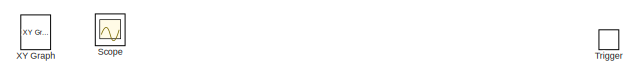
[diagram: root canvas - part 1/3, top left region]
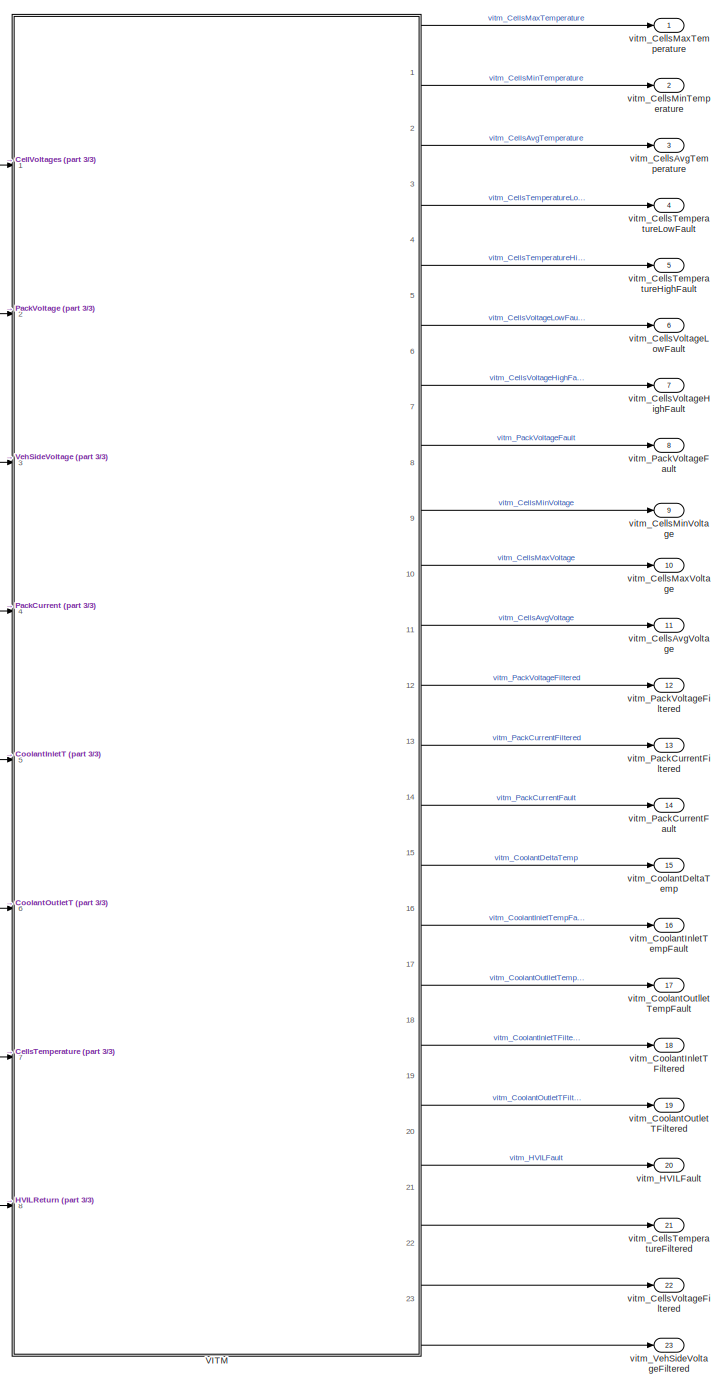
[diagram: root canvas - part 2/3, right side, full height]
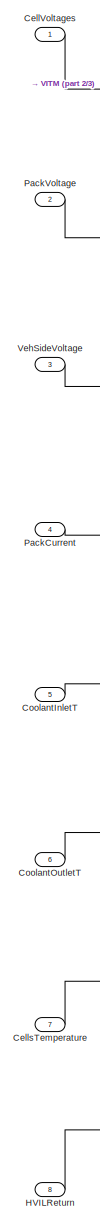
[diagram: root canvas - part 3/3, left side, full height]
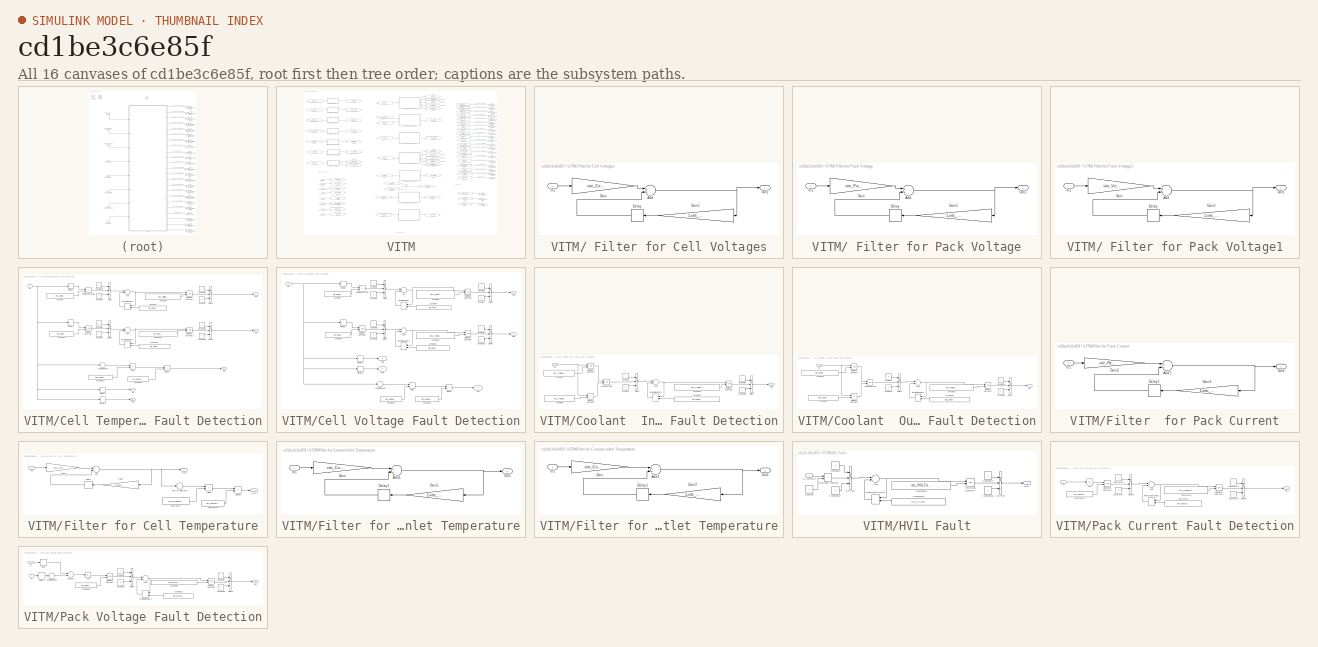
[diagram: thumbnail index - all 16 canvases of the model, root first then tree order]
MODEL slx_cd1be3c6e85f
KIND model
CONFIG AbsTol = auto
CONFIG FixedStep = 0.01
CONFIG MaxStep = auto
CONFIG MinStep = auto
CONFIG RelTol = 1e-3
CONFIG SampleTimeConstraint = Unconstrained
CONFIG Solver = FixedStepAuto
CONFIG SolverMode = Auto
CONFIG SolverName = FixedStepAuto
CONFIG StartTime = 0.0
CONFIG StopTime = 50
BLOCK [Inport] CellVoltages
  IconDisplay = Port number
  PortDimensions = 40
BLOCK [Inport] CellsTemperature
  IconDisplay = Port number
  Port = 7
  PortDimensions = 40
BLOCK [Inport] CoolantInletT
  IconDisplay = Port number
  Port = 5
BLOCK [Inport] CoolantOutletT
  IconDisplay = Port number
  Port = 6
BLOCK [Inport] HVILReturn
  IconDisplay = Port number
  Port = 8
BLOCK [Inport] PackCurrent
  IconDisplay = Port number
  Port = 4
BLOCK [Inport] PackVoltage
  IconDisplay = Port number
  Port = 2
BLOCK [Scope] Scope
  IOType = viewer
  Ports = []
  ScopeSpecificationString = Simulink.scopes.TimeScopeBlockCfg('CurrentConfiguration', extmgr.ConfigurationSet(extmgr.Configuration('Core','General UI',true),extmgr.Configuration('Core','Source UI',true),extmgr.Configuration('Sources','WiredSimulink',true),extmgr.Configuration('Visuals','Time Domain',true),extmgr.Configuration('Tools','Plot Navigation',true),extmgr.Configuration('Tools','Measurements',true,'Version','2015b'))...<+51ch>
BLOCK [TriggerPort] Trigger
  PortDimensions = 1
  Ports = []
  StatesWhenEnabling = held
  TriggerType = function-call
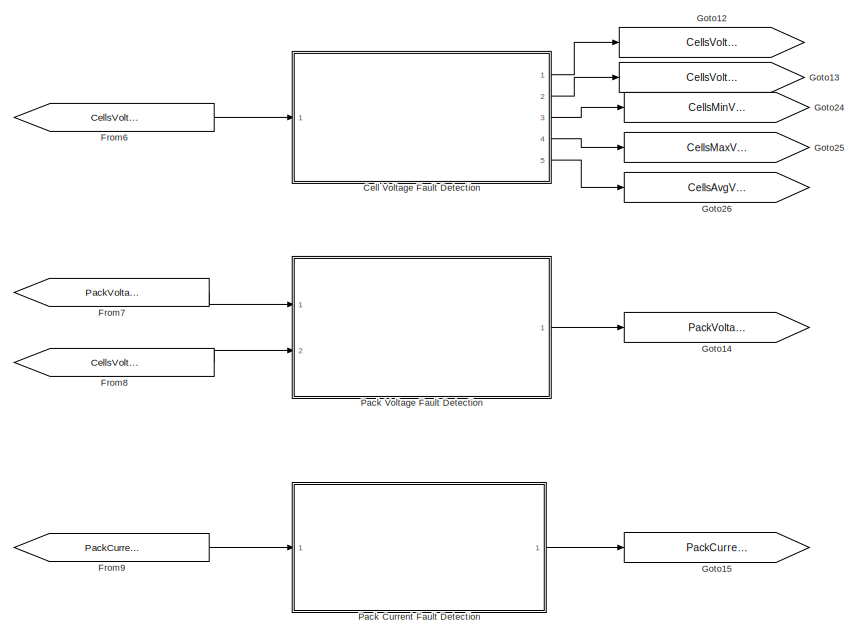
[diagram: VITM - part 1/4, top center region]
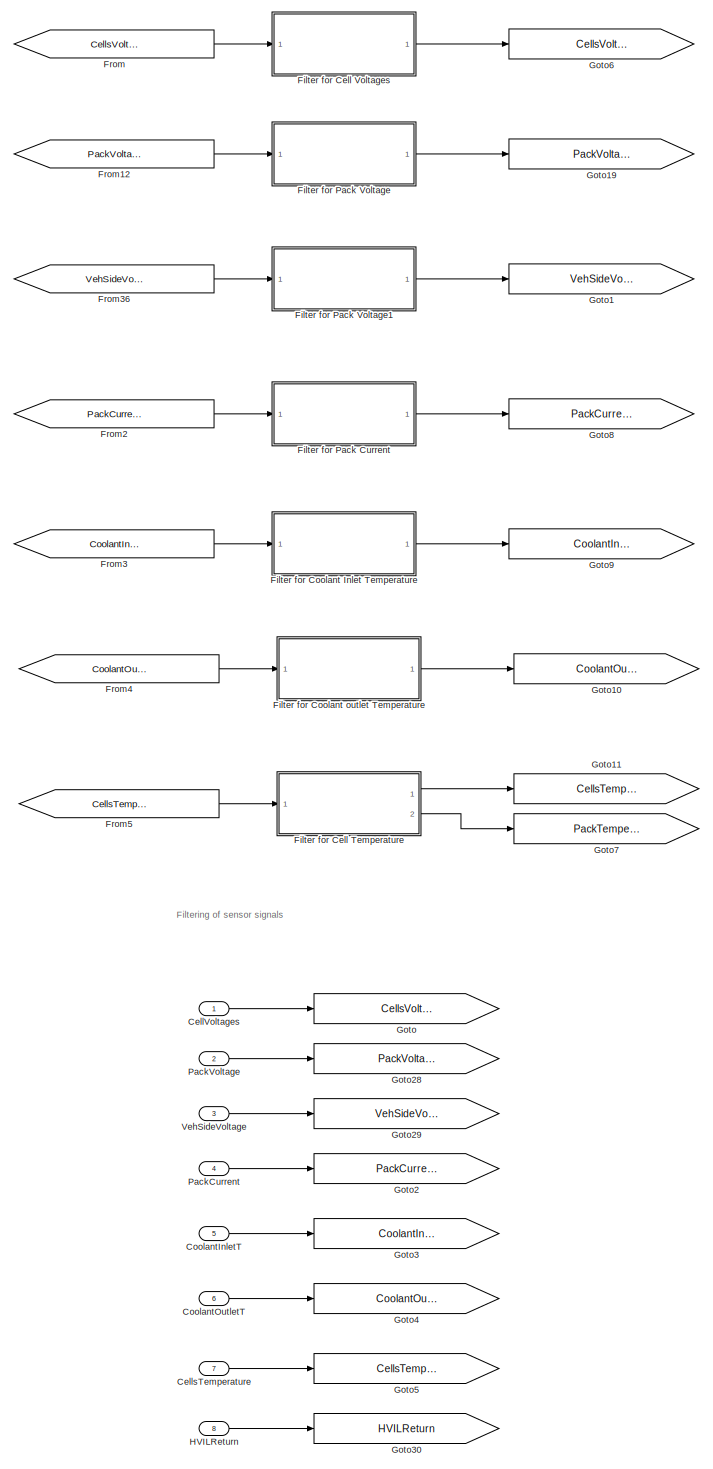
[diagram: VITM - part 2/4, left side, full height]
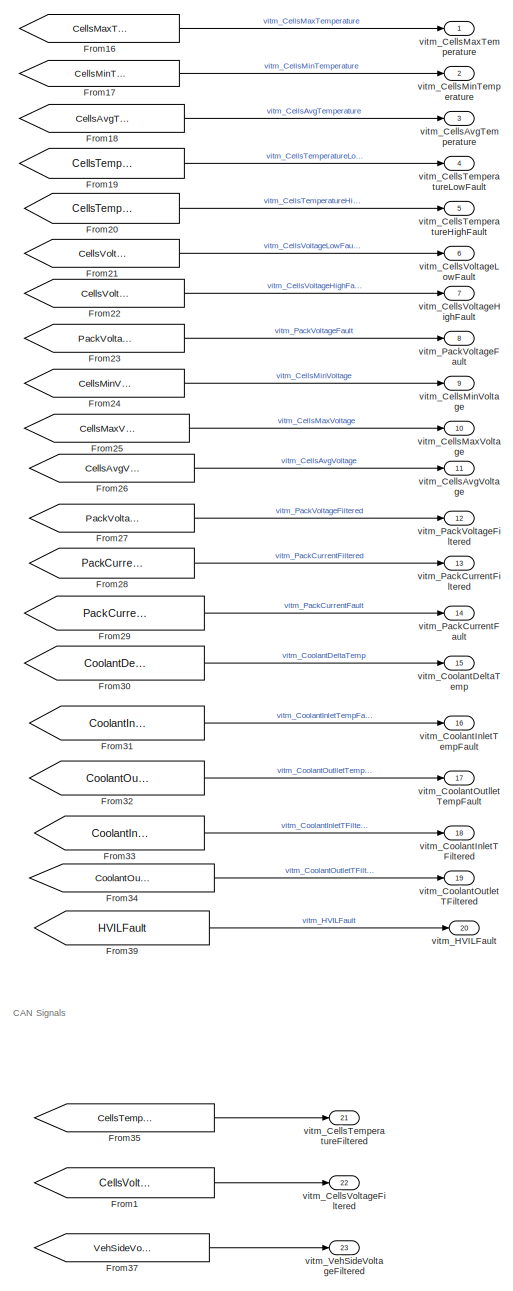
[diagram: VITM - part 3/4, right side, full height]
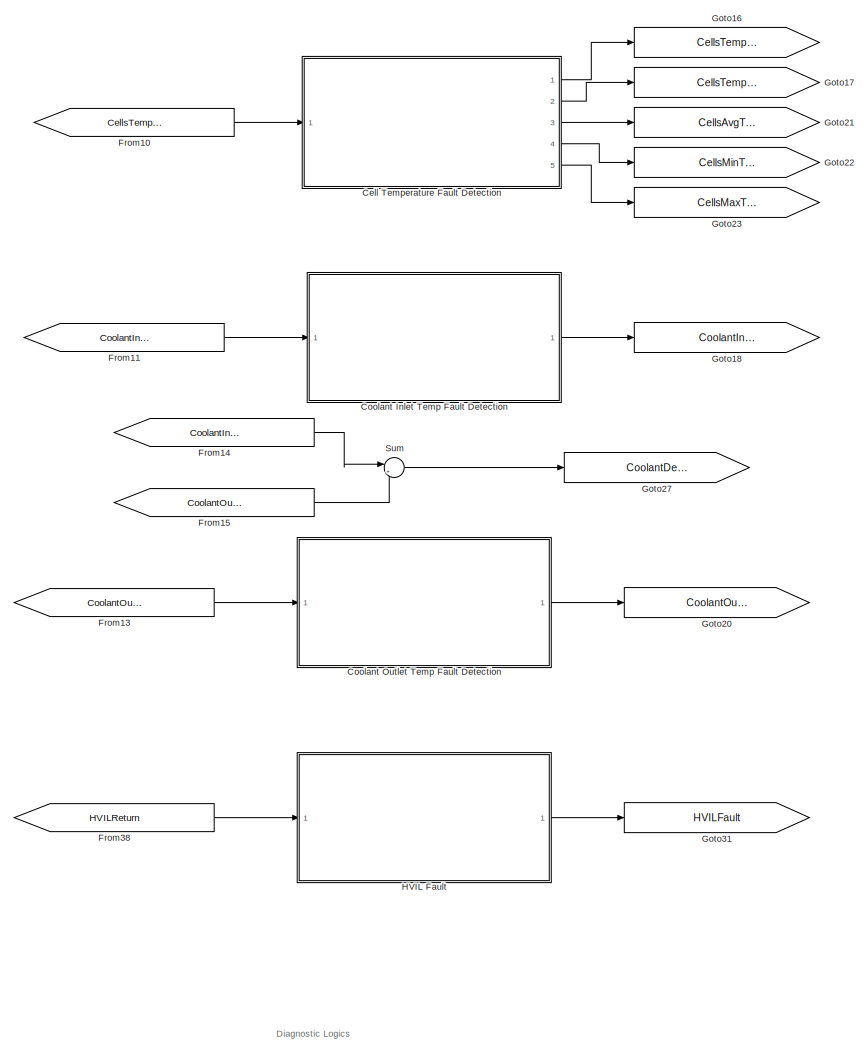
[diagram: VITM - part 4/4, bottom center region]
BLOCK [SubSystem] VITM
  Ports = [8, 23]
  RequestExecContextInheritance = off
  TreatAsAtomicUnit = on
  Variant = off
BLOCK [SubSystem] VITM/ Filter for Cell Voltages
  Ports = [1, 1]
  RequestExecContextInheritance = off
  Variant = off
BLOCK [Sum] VITM/ Filter for Cell Voltages/Add
  InputSameDT = off
  OutDataTypeStr = Inherit: Inherit via internal rule
  Ports = [2, 1]
  SaturateOnIntegerOverflow = off
BLOCK [Delay] VITM/ Filter for Cell Voltages/Delay
  DelayLength = 1
  InputPortMap = u0
  Ports = [1, 1]
BLOCK [Gain] VITM/ Filter for Cell Voltages/Gain
  Gain = vitc_CellVolFilterC
  OutDataTypeStr = Inherit: Inherit via internal rule
  ParamDataTypeStr = Inherit: Inherit via internal rule
  SaturateOnIntegerOverflow = off
BLOCK [Gain] VITM/ Filter for Cell Voltages/Gain1
  Gain = 1-vitc_CellVolFilterC
  OutDataTypeStr = Inherit: Inherit via internal rule
  ParamDataTypeStr = Inherit: Inherit via internal rule
  SaturateOnIntegerOverflow = off
BLOCK [Inport] VITM/ Filter for Cell Voltages/In1
  IconDisplay = Port number
BLOCK [Outport] VITM/ Filter for Cell Voltages/Out1
  IconDisplay = Port number
BLOCK [SubSystem] VITM/ Filter for Pack Voltage
  Ports = [1, 1]
  RequestExecContextInheritance = off
  Variant = off
BLOCK [Sum] VITM/ Filter for Pack Voltage/Add
  InputSameDT = off
  OutDataTypeStr = Inherit: Inherit via internal rule
  Ports = [2, 1]
  SaturateOnIntegerOverflow = off
BLOCK [Delay] VITM/ Filter for Pack Voltage/Delay
  DelayLength = 1
  InputPortMap = u0
  Ports = [1, 1]
BLOCK [Gain] VITM/ Filter for Pack Voltage/Gain
  Gain = vitc_PackVolFilterC
  OutDataTypeStr = Inherit: Inherit via internal rule
  ParamDataTypeStr = Inherit: Inherit via internal rule
  SaturateOnIntegerOverflow = off
BLOCK [Gain] VITM/ Filter for Pack Voltage/Gain1
  Gain = 1-vitc_PackVolFilterC
  OutDataTypeStr = Inherit: Inherit via internal rule
  ParamDataTypeStr = Inherit: Inherit via internal rule
  SaturateOnIntegerOverflow = off
BLOCK [Inport] VITM/ Filter for Pack Voltage/In1
  IconDisplay = Port number
BLOCK [Outport] VITM/ Filter for Pack Voltage/Out1
  IconDisplay = Port number
BLOCK [SubSystem] VITM/ Filter for Pack Voltage1
  Ports = [1, 1]
  RequestExecContextInheritance = off
  Variant = off
BLOCK [Sum] VITM/ Filter for Pack Voltage1/Add
  InputSameDT = off
  OutDataTypeStr = Inherit: Inherit via internal rule
  Ports = [2, 1]
  SaturateOnIntegerOverflow = off
BLOCK [Delay] VITM/ Filter for Pack Voltage1/Delay
  DelayLength = 1
  InputPortMap = u0
  Ports = [1, 1]
BLOCK [Gain] VITM/ Filter for Pack Voltage1/Gain
  Gain = vitc_VehVolFilterC
  OutDataTypeStr = Inherit: Inherit via internal rule
  ParamDataTypeStr = Inherit: Inherit via internal rule
  SaturateOnIntegerOverflow = off
BLOCK [Gain] VITM/ Filter for Pack Voltage1/Gain1
  Gain = 1-vitc_VehVolFilterC
  OutDataTypeStr = Inherit: Inherit via internal rule
  ParamDataTypeStr = Inherit: Inherit via internal rule
  SaturateOnIntegerOverflow = off
BLOCK [Inport] VITM/ Filter for Pack Voltage1/In1
  IconDisplay = Port number
BLOCK [Outport] VITM/ Filter for Pack Voltage1/Out1
  IconDisplay = Port number
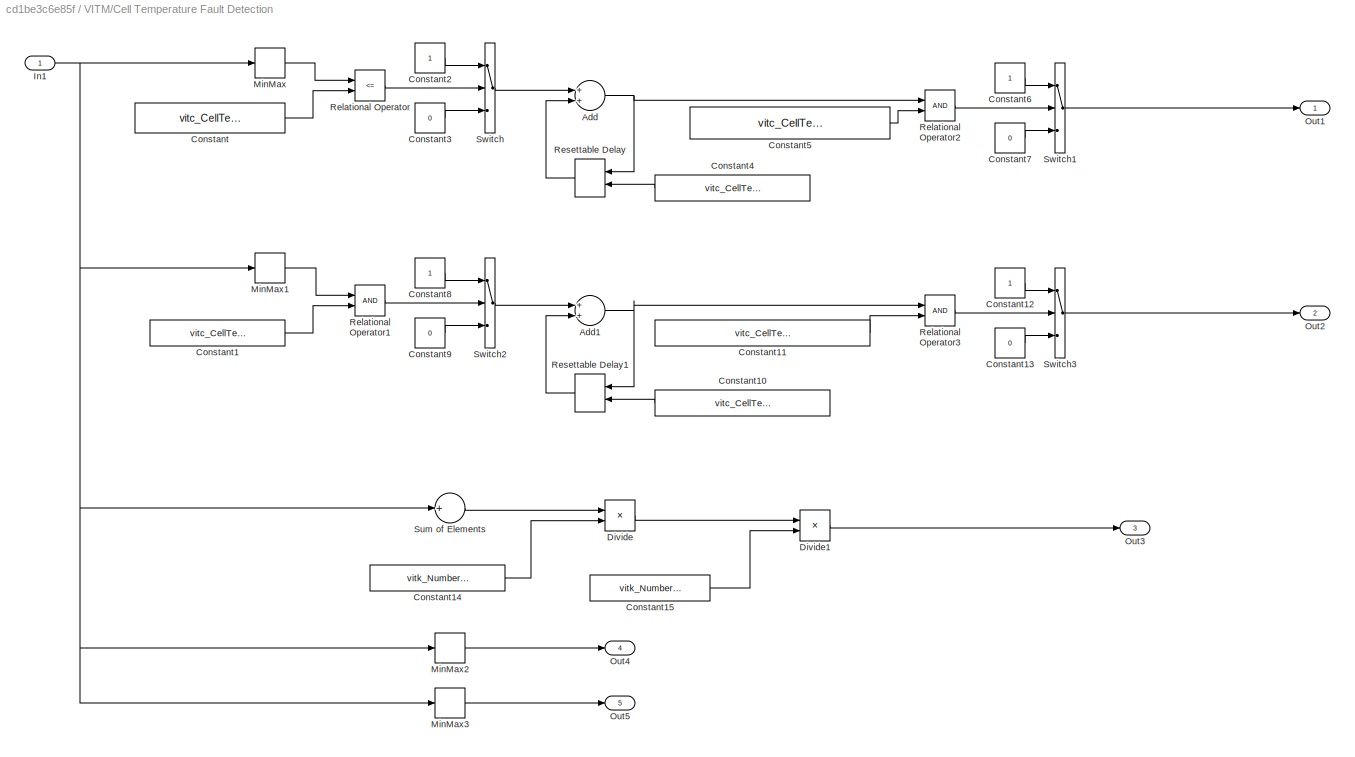
BLOCK [SubSystem] VITM/Cell Temperature Fault Detection
  Ports = [1, 5]
  RequestExecContextInheritance = off
  Variant = off
BLOCK [Sum] VITM/Cell Temperature Fault Detection/Add
  InputSameDT = off
  OutDataTypeStr = Inherit: Inherit via internal rule
  Ports = [2, 1]
  SaturateOnIntegerOverflow = off
BLOCK [Sum] VITM/Cell Temperature Fault Detection/Add1
  InputSameDT = off
  OutDataTypeStr = Inherit: Inherit via internal rule
  Ports = [2, 1]
  SaturateOnIntegerOverflow = off
BLOCK [Constant] VITM/Cell Temperature Fault Detection/Constant
  Value = vitc_CellTempMin
BLOCK [Constant] VITM/Cell Temperature Fault Detection/Constant1
  Value = vitc_CellTempMax
BLOCK [Constant] VITM/Cell Temperature Fault Detection/Constant10
  Value = vitc_CellTempHighFaultReset
BLOCK [Constant] VITM/Cell Temperature Fault Detection/Constant11
  Value = vitc_CellTempFaultTimer/vitk_stepSize
BLOCK [Constant] VITM/Cell Temperature Fault Detection/Constant12
  OutDataTypeStr = uint8
BLOCK [Constant] VITM/Cell Temperature Fault Detection/Constant13
  OutDataTypeStr = uint8
  Value = 0
BLOCK [Constant] VITM/Cell Temperature Fault Detection/Constant14
  Value = vitk_NumberInSeries
BLOCK [Constant] VITM/Cell Temperature Fault Detection/Constant15
  Value = vitk_NumberInPara
BLOCK [Constant] VITM/Cell Temperature Fault Detection/Constant2
BLOCK [Constant] VITM/Cell Temperature Fault Detection/Constant3
  Value = 0
BLOCK [Constant] VITM/Cell Temperature Fault Detection/Constant4
  Value = vitc_CellTempLowFaultReset
BLOCK [Constant] VITM/Cell Temperature Fault Detection/Constant5
  Value = vitc_CellTempFaultTimer/vitk_stepSize
BLOCK [Constant] VITM/Cell Temperature Fault Detection/Constant6
  OutDataTypeStr = uint8
BLOCK [Constant] VITM/Cell Temperature Fault Detection/Constant7
  OutDataTypeStr = uint8
  Value = 0
BLOCK [Constant] VITM/Cell Temperature Fault Detection/Constant8
BLOCK [Constant] VITM/Cell Temperature Fault Detection/Constant9
  Value = 0
BLOCK [Product] VITM/Cell Temperature Fault Detection/Divide
  InputSameDT = off
  Inputs = */
  OutDataTypeStr = Inherit: Inherit via internal rule
  Ports = [2, 1]
  RndMeth = Floor
  SaturateOnIntegerOverflow = off
BLOCK [Product] VITM/Cell Temperature Fault Detection/Divide1
  InputSameDT = off
  Inputs = */
  OutDataTypeStr = Inherit: Inherit via internal rule
  Ports = [2, 1]
  RndMeth = Floor
  SaturateOnIntegerOverflow = off
BLOCK [Inport] VITM/Cell Temperature Fault Detection/In1
  IconDisplay = Port number
BLOCK [MinMax] VITM/Cell Temperature Fault Detection/MinMax
  InputSameDT = off
  Ports = [1, 1]
  SaturateOnIntegerOverflow = off
BLOCK [MinMax] VITM/Cell Temperature Fault Detection/MinMax1
  Function = max
  InputSameDT = off
  Ports = [1, 1]
  SaturateOnIntegerOverflow = off
BLOCK [MinMax] VITM/Cell Temperature Fault Detection/MinMax2
  InputSameDT = off
  Ports = [1, 1]
  SaturateOnIntegerOverflow = off
BLOCK [MinMax] VITM/Cell Temperature Fault Detection/MinMax3
  Function = max
  InputSameDT = off
  Ports = [1, 1]
  SaturateOnIntegerOverflow = off
BLOCK [Outport] VITM/Cell Temperature Fault Detection/Out1
  IconDisplay = Port number
BLOCK [Outport] VITM/Cell Temperature Fault Detection/Out2
  IconDisplay = Port number
  Port = 2
BLOCK [Outport] VITM/Cell Temperature Fault Detection/Out3
  IconDisplay = Port number
  Port = 3
BLOCK [Outport] VITM/Cell Temperature Fault Detection/Out4
  IconDisplay = Port number
  Port = 4
BLOCK [Outport] VITM/Cell Temperature Fault Detection/Out5
  IconDisplay = Port number
  Port = 5
BLOCK [RelationalOperator] VITM/Cell Temperature Fault Detection/Relational Operator
  InputSameDT = off
  Operator = <=
  OutDataTypeStr = boolean
  Ports = [2, 1]
BLOCK [RelationalOperator] VITM/Cell Temperature Fault Detection/Relational Operator1
  InputSameDT = off
  OutDataTypeStr = boolean
  Ports = [2, 1]
BLOCK [RelationalOperator] VITM/Cell Temperature Fault Detection/Relational Operator2
  InputSameDT = off
  OutDataTypeStr = boolean
  Ports = [2, 1]
BLOCK [RelationalOperator] VITM/Cell Temperature Fault Detection/Relational Operator3
  InputSameDT = off
  OutDataTypeStr = boolean
  Ports = [2, 1]
BLOCK [Delay] VITM/Cell Temperature Fault Detection/Resettable Delay
  DelayLength = 1
  ExternalReset = Rising
  InputPortMap = u0,r5
  Ports = [2, 1]
BLOCK [Delay] VITM/Cell Temperature Fault Detection/Resettable Delay1
  DelayLength = 1
  ExternalReset = Rising
  InputPortMap = u0,r5
  Ports = [2, 1]
BLOCK [Sum] VITM/Cell Temperature Fault Detection/Sum of Elements
  InputSameDT = off
  Inputs = +
  OutDataTypeStr = Inherit: Inherit via internal rule
  Ports = [1, 1]
  SaturateOnIntegerOverflow = off
BLOCK [Switch] VITM/Cell Temperature Fault Detection/Switch
  Criteria = u2 > Threshold
  InputSameDT = off
  SaturateOnIntegerOverflow = off
BLOCK [Switch] VITM/Cell Temperature Fault Detection/Switch1
  Criteria = u2 > Threshold
  InputSameDT = off
  SaturateOnIntegerOverflow = off
BLOCK [Switch] VITM/Cell Temperature Fault Detection/Switch2
  Criteria = u2 > Threshold
  InputSameDT = off
  SaturateOnIntegerOverflow = off
BLOCK [Switch] VITM/Cell Temperature Fault Detection/Switch3
  Criteria = u2 > Threshold
  InputSameDT = off
  SaturateOnIntegerOverflow = off
BLOCK [SubSystem] VITM/Cell Voltage Fault Detection
  Ports = [1, 5]
  RequestExecContextInheritance = off
  Variant = off
BLOCK [Sum] VITM/Cell Voltage Fault Detection/Add
  InputSameDT = off
  OutDataTypeStr = Inherit: Inherit via internal rule
  Ports = [2, 1]
  SaturateOnIntegerOverflow = off
BLOCK [Sum] VITM/Cell Voltage Fault Detection/Add1
  InputSameDT = off
  OutDataTypeStr = Inherit: Inherit via internal rule
  Ports = [2, 1]
  SaturateOnIntegerOverflow = off
BLOCK [Constant] VITM/Cell Voltage Fault Detection/Constant
  Value = vitc_CellVoltageMin
BLOCK [Constant] VITM/Cell Voltage Fault Detection/Constant1
  Value = vitc_CellVoltageMax
BLOCK [Constant] VITM/Cell Voltage Fault Detection/Constant10
  Value = vitc_CellVoltageHighFaultReset
BLOCK [Constant] VITM/Cell Voltage Fault Detection/Constant11
  Value = vitc_CellVoltageFaultTimer/vitk_stepSize
BLOCK [Constant] VITM/Cell Voltage Fault Detection/Constant12
  OutDataTypeStr = uint8
BLOCK [Constant] VITM/Cell Voltage Fault Detection/Constant13
  OutDataTypeStr = uint8
  Value = 0
BLOCK [Constant] VITM/Cell Voltage Fault Detection/Constant14
  Value = vitk_NumberInSeries
BLOCK [Constant] VITM/Cell Voltage Fault Detection/Constant15
  Value = vitk_NumberInPara
BLOCK [Constant] VITM/Cell Voltage Fault Detection/Constant2
BLOCK [Constant] VITM/Cell Voltage Fault Detection/Constant3
  Value = 0
BLOCK [Constant] VITM/Cell Voltage Fault Detection/Constant4
  Value = vitc_CellVoltageLowFaultReset
BLOCK [Constant] VITM/Cell Voltage Fault Detection/Constant5
  Value = vitc_CellVoltageFaultTimer/vitk_stepSize
BLOCK [Constant] VITM/Cell Voltage Fault Detection/Constant6
  OutDataTypeStr = uint8
BLOCK [Constant] VITM/Cell Voltage Fault Detection/Constant7
  OutDataTypeStr = uint8
  Value = 0
BLOCK [Constant] VITM/Cell Voltage Fault Detection/Constant8
BLOCK [Constant] VITM/Cell Voltage Fault Detection/Constant9
  Value = 0
BLOCK [Product] VITM/Cell Voltage Fault Detection/Divide
  InputSameDT = off
  Inputs = */
  OutDataTypeStr = Inherit: Inherit via internal rule
  Ports = [2, 1]
  RndMeth = Floor
  SaturateOnIntegerOverflow = off
BLOCK [Product] VITM/Cell Voltage Fault Detection/Divide1
  InputSameDT = off
  Inputs = */
  OutDataTypeStr = double
  Ports = [2, 1]
  RndMeth = Floor
  SaturateOnIntegerOverflow = off
BLOCK [Inport] VITM/Cell Voltage Fault Detection/In1
  IconDisplay = Port number
BLOCK [MinMax] VITM/Cell Voltage Fault Detection/MinMax
  InputSameDT = off
  Ports = [1, 1]
  SaturateOnIntegerOverflow = off
BLOCK [MinMax] VITM/Cell Voltage Fault Detection/MinMax1
  Function = max
  InputSameDT = off
  Ports = [1, 1]
  SaturateOnIntegerOverflow = off
BLOCK [MinMax] VITM/Cell Voltage Fault Detection/MinMax2
  InputSameDT = off
  Ports = [1, 1]
  SaturateOnIntegerOverflow = off
BLOCK [MinMax] VITM/Cell Voltage Fault Detection/MinMax3
  Function = max
  InputSameDT = off
  Ports = [1, 1]
  SaturateOnIntegerOverflow = off
BLOCK [Outport] VITM/Cell Voltage Fault Detection/Out1
  IconDisplay = Port number
BLOCK [Outport] VITM/Cell Voltage Fault Detection/Out2
  IconDisplay = Port number
  Port = 2
BLOCK [Outport] VITM/Cell Voltage Fault Detection/Out3
  IconDisplay = Port number
  Port = 3
BLOCK [Outport] VITM/Cell Voltage Fault Detection/Out4
  IconDisplay = Port number
  Port = 4
BLOCK [Outport] VITM/Cell Voltage Fault Detection/Out5
  IconDisplay = Port number
  OutDataTypeStr = double
  Port = 5
BLOCK [RelationalOperator] VITM/Cell Voltage Fault Detection/Relational Operator
  InputSameDT = off
  Operator = <=
  OutDataTypeStr = boolean
  Ports = [2, 1]
BLOCK [RelationalOperator] VITM/Cell Voltage Fault Detection/Relational Operator1
  InputSameDT = off
  OutDataTypeStr = boolean
  Ports = [2, 1]
BLOCK [RelationalOperator] VITM/Cell Voltage Fault Detection/Relational Operator2
  InputSameDT = off
  OutDataTypeStr = boolean
  Ports = [2, 1]
BLOCK [RelationalOperator] VITM/Cell Voltage Fault Detection/Relational Operator3
  InputSameDT = off
  OutDataTypeStr = boolean
  Ports = [2, 1]
BLOCK [Delay] VITM/Cell Voltage Fault Detection/Resettable Delay
  DelayLength = 1
  ExternalReset = Rising
  InputPortMap = u0,r5
  Ports = [2, 1]
BLOCK [Delay] VITM/Cell Voltage Fault Detection/Resettable Delay1
  DelayLength = 1
  ExternalReset = Rising
  InputPortMap = u0,r5
  Ports = [2, 1]
BLOCK [Sum] VITM/Cell Voltage Fault Detection/Sum of Elements
  InputSameDT = off
  Inputs = +
  OutDataTypeStr = Inherit: Inherit via internal rule
  Ports = [1, 1]
  SaturateOnIntegerOverflow = off
BLOCK [Switch] VITM/Cell Voltage Fault Detection/Switch
  Criteria = u2 > Threshold
  InputSameDT = off
  SaturateOnIntegerOverflow = off
BLOCK [Switch] VITM/Cell Voltage Fault Detection/Switch1
  Criteria = u2 > Threshold
  InputSameDT = off
  SaturateOnIntegerOverflow = off
BLOCK [Switch] VITM/Cell Voltage Fault Detection/Switch2
  Criteria = u2 > Threshold
  InputSameDT = off
  SaturateOnIntegerOverflow = off
BLOCK [Switch] VITM/Cell Voltage Fault Detection/Switch3
  Criteria = u2 > Threshold
  InputSameDT = off
  SaturateOnIntegerOverflow = off
BLOCK [Inport] VITM/CellVoltages
  IconDisplay = Port number
  PortDimensions = 40
BLOCK [Inport] VITM/CellsTemperature
  IconDisplay = Port number
  Port = 7
  PortDimensions = 40
BLOCK [SubSystem] VITM/Coolant  Inlet Temp Fault Detection
  Ports = [1, 1]
  RequestExecContextInheritance = off
  Variant = off
BLOCK [Sum] VITM/Coolant  Inlet Temp Fault Detection/Add3
  InputSameDT = off
  OutDataTypeStr = Inherit: Inherit via internal rule
  Ports = [2, 1]
  SaturateOnIntegerOverflow = off
BLOCK [Constant] VITM/Coolant  Inlet Temp Fault Detection/Constant1
BLOCK [Constant] VITM/Coolant  Inlet Temp Fault Detection/Constant2
  Value = vitc_CoolantInletTUpperLim
BLOCK [Constant] VITM/Coolant  Inlet Temp Fault Detection/Constant22
  Value = vitc_CoolantInletTFaultReset
BLOCK [Constant] VITM/Coolant  Inlet Temp Fault Detection/Constant23
  Value = vitc_CoolantTempFaultCounter/vitk_stepSize
BLOCK [Constant] VITM/Coolant  Inlet Temp Fault Detection/Constant24
  OutDataTypeStr = uint8
BLOCK [Constant] VITM/Coolant  Inlet Temp Fault Detection/Constant25
  OutDataTypeStr = uint8
  Value = 0
BLOCK [Constant] VITM/Coolant  Inlet Temp Fault Detection/Constant27
  Value = 0
BLOCK [Constant] VITM/Coolant  Inlet Temp Fault Detection/Constant3
  Value = vitc_CoolantInletTLowerLim
BLOCK [Inport] VITM/Coolant  Inlet Temp Fault Detection/In1
  IconDisplay = Port number
BLOCK [Logic] VITM/Coolant  Inlet Temp Fault Detection/Logical Operator
  AllPortsSameDT = off
  Operator = OR
  OutDataTypeStr = boolean
  Ports = [2, 1]
BLOCK [Outport] VITM/Coolant  Inlet Temp Fault Detection/Out1
  IconDisplay = Port number
BLOCK [RelationalOperator] VITM/Coolant  Inlet Temp Fault Detection/Relational Operator1
  InputSameDT = off
  OutDataTypeStr = boolean
  Ports = [2, 1]
BLOCK [RelationalOperator] VITM/Coolant  Inlet Temp Fault Detection/Relational Operator2
  InputSameDT = off
  Operator = <=
  OutDataTypeStr = boolean
  Ports = [2, 1]
BLOCK [RelationalOperator] VITM/Coolant  Inlet Temp Fault Detection/Relational Operator7
  InputSameDT = off
  OutDataTypeStr = boolean
  Ports = [2, 1]
BLOCK [Delay] VITM/Coolant  Inlet Temp Fault Detection/Resettable Delay3
  DelayLength = 1
  ExternalReset = Rising
  InputPortMap = u0,r5
  Ports = [2, 1]
BLOCK [Switch] VITM/Coolant  Inlet Temp Fault Detection/Switch6
  Criteria = u2 > Threshold
  InputSameDT = off
  SaturateOnIntegerOverflow = off
BLOCK [Switch] VITM/Coolant  Inlet Temp Fault Detection/Switch7
  Criteria = u2 > Threshold
  InputSameDT = off
  SaturateOnIntegerOverflow = off
BLOCK [SubSystem] VITM/Coolant  Outlet Temp Fault Detection
  Ports = [1, 1]
  RequestExecContextInheritance = off
  Variant = off
BLOCK [Sum] VITM/Coolant  Outlet Temp Fault Detection/Add3
  InputSameDT = off
  OutDataTypeStr = Inherit: Inherit via internal rule
  Ports = [2, 1]
  SaturateOnIntegerOverflow = off
BLOCK [Constant] VITM/Coolant  Outlet Temp Fault Detection/Constant1
BLOCK [Constant] VITM/Coolant  Outlet Temp Fault Detection/Constant2
  Value = vitc_CoolantOutletTUpperLim
BLOCK [Constant] VITM/Coolant  Outlet Temp Fault Detection/Constant22
  Value = vitc_CoolantOutletTFaultReset
BLOCK [Constant] VITM/Coolant  Outlet Temp Fault Detection/Constant23
  Value = vitc_CoolantTempFaultCounter/vitk_stepSize
BLOCK [Constant] VITM/Coolant  Outlet Temp Fault Detection/Constant24
  OutDataTypeStr = uint8
BLOCK [Constant] VITM/Coolant  Outlet Temp Fault Detection/Constant25
  OutDataTypeStr = uint8
  Value = 0
BLOCK [Constant] VITM/Coolant  Outlet Temp Fault Detection/Constant27
  Value = 0
BLOCK [Constant] VITM/Coolant  Outlet Temp Fault Detection/Constant3
  Value = vitc_CoolantOutletTLowerLim
BLOCK [Inport] VITM/Coolant  Outlet Temp Fault Detection/In1
  IconDisplay = Port number
BLOCK [Logic] VITM/Coolant  Outlet Temp Fault Detection/Logical Operator
  AllPortsSameDT = off
  Operator = OR
  OutDataTypeStr = boolean
  Ports = [2, 1]
BLOCK [Outport] VITM/Coolant  Outlet Temp Fault Detection/Out1
  IconDisplay = Port number
BLOCK [RelationalOperator] VITM/Coolant  Outlet Temp Fault Detection/Relational Operator1
  InputSameDT = off
  OutDataTypeStr = boolean
  Ports = [2, 1]
BLOCK [RelationalOperator] VITM/Coolant  Outlet Temp Fault Detection/Relational Operator2
  InputSameDT = off
  Operator = <=
  OutDataTypeStr = boolean
  Ports = [2, 1]
BLOCK [RelationalOperator] VITM/Coolant  Outlet Temp Fault Detection/Relational Operator7
  InputSameDT = off
  OutDataTypeStr = boolean
  Ports = [2, 1]
BLOCK [Delay] VITM/Coolant  Outlet Temp Fault Detection/Resettable Delay3
  DelayLength = 1
  ExternalReset = Rising
  InputPortMap = u0,r5
  Ports = [2, 1]
BLOCK [Switch] VITM/Coolant  Outlet Temp Fault Detection/Switch6
  Criteria = u2 > Threshold
  InputSameDT = off
  SaturateOnIntegerOverflow = off
BLOCK [Switch] VITM/Coolant  Outlet Temp Fault Detection/Switch7
  Criteria = u2 > Threshold
  InputSameDT = off
  SaturateOnIntegerOverflow = off
BLOCK [Inport] VITM/CoolantInletT
  IconDisplay = Port number
  Port = 5
BLOCK [Inport] VITM/CoolantOutletT
  IconDisplay = Port number
  Port = 6
BLOCK [SubSystem] VITM/Filter  for Pack Current
  Ports = [1, 1]
  RequestExecContextInheritance = off
  Variant = off
BLOCK [Sum] VITM/Filter  for Pack Current/Add1
  InputSameDT = off
  OutDataTypeStr = Inherit: Inherit via internal rule
  Ports = [2, 1]
  SaturateOnIntegerOverflow = off
BLOCK [Delay] VITM/Filter  for Pack Current/Delay1
  DelayLength = 1
  InputPortMap = u0
  Ports = [1, 1]
BLOCK [Gain] VITM/Filter  for Pack Current/Gain2
  Gain = vitc_PackCurFilterC
  OutDataTypeStr = Inherit: Inherit via internal rule
  ParamDataTypeStr = Inherit: Inherit via internal rule
  SaturateOnIntegerOverflow = off
BLOCK [Gain] VITM/Filter  for Pack Current/Gain3
  Gain = 1-vitc_PackCurFilterC
  OutDataTypeStr = Inherit: Inherit via internal rule
  ParamDataTypeStr = Inherit: Inherit via internal rule
  SaturateOnIntegerOverflow = off
BLOCK [Inport] VITM/Filter  for Pack Current/In1
  IconDisplay = Port number
BLOCK [Outport] VITM/Filter  for Pack Current/Out1
  IconDisplay = Port number
BLOCK [SubSystem] VITM/Filter for Cell Temperature
  Ports = [1, 2]
  RequestExecContextInheritance = off
  Variant = off
BLOCK [Sum] VITM/Filter for Cell Temperature/Add1
  InputSameDT = off
  OutDataTypeStr = Inherit: Inherit via internal rule
  Ports = [2, 1]
  SaturateOnIntegerOverflow = off
BLOCK [Constant] VITM/Filter for Cell Temperature/Constant14
  Value = vitk_NumberInSeries
BLOCK [Constant] VITM/Filter for Cell Temperature/Constant15
  Value = vitk_NumberInPara
BLOCK [Delay] VITM/Filter for Cell Temperature/Delay1
  DelayLength = 1
  InputPortMap = u0
  Ports = [1, 1]
BLOCK [Product] VITM/Filter for Cell Temperature/Divide
  InputSameDT = off
  Inputs = */
  OutDataTypeStr = double
  Ports = [2, 1]
  RndMeth = Floor
  SaturateOnIntegerOverflow = off
BLOCK [Product] VITM/Filter for Cell Temperature/Divide1
  InputSameDT = off
  Inputs = */
  OutDataTypeStr = Inherit: Inherit via internal rule
  Ports = [2, 1]
  RndMeth = Floor
  SaturateOnIntegerOverflow = off
BLOCK [Gain] VITM/Filter for Cell Temperature/Gain2
  Gain = vitc_CellTempFilterC
  OutDataTypeStr = Inherit: Inherit via internal rule
  ParamDataTypeStr = Inherit: Inherit via internal rule
  SaturateOnIntegerOverflow = off
BLOCK [Gain] VITM/Filter for Cell Temperature/Gain3
  Gain = 1-vitc_CellTempFilterC
  OutDataTypeStr = Inherit: Inherit via internal rule
  ParamDataTypeStr = Inherit: Inherit via internal rule
  SaturateOnIntegerOverflow = off
BLOCK [Inport] VITM/Filter for Cell Temperature/In1
  IconDisplay = Port number
BLOCK [Outport] VITM/Filter for Cell Temperature/Out1
  IconDisplay = Port number
BLOCK [Outport] VITM/Filter for Cell Temperature/Out6
  IconDisplay = Port number
  Port = 2
BLOCK [Sum] VITM/Filter for Cell Temperature/Sum of Elements
  InputSameDT = off
  Inputs = +
  OutDataTypeStr = Inherit: Inherit via internal rule
  Ports = [1, 1]
  SaturateOnIntegerOverflow = off
BLOCK [SubSystem] VITM/Filter for Coolant Inlet Temperature
  Ports = [1, 1]
  RequestExecContextInheritance = off
  Variant = off
BLOCK [Sum] VITM/Filter for Coolant Inlet Temperature/Add1
  InputSameDT = off
  OutDataTypeStr = Inherit: Inherit via internal rule
  Ports = [2, 1]
  SaturateOnIntegerOverflow = off
BLOCK [Delay] VITM/Filter for Coolant Inlet Temperature/Delay1
  DelayLength = 1
  InputPortMap = u0
  Ports = [1, 1]
BLOCK [Gain] VITM/Filter for Coolant Inlet Temperature/Gain
  Gain = vitc_CoolantTFilterC
  OutDataTypeStr = Inherit: Inherit via internal rule
  ParamDataTypeStr = Inherit: Inherit via internal rule
  SaturateOnIntegerOverflow = off
BLOCK [Gain] VITM/Filter for Coolant Inlet Temperature/Gain1
  Gain = 1-vitc_CoolantTFilterC
  OutDataTypeStr = Inherit: Inherit via internal rule
  ParamDataTypeStr = Inherit: Inherit via internal rule
  SaturateOnIntegerOverflow = off
BLOCK [Inport] VITM/Filter for Coolant Inlet Temperature/In1
  IconDisplay = Port number
BLOCK [Outport] VITM/Filter for Coolant Inlet Temperature/Out1
  IconDisplay = Port number
BLOCK [SubSystem] VITM/Filter for Coolant outlet Temperature
  Ports = [1, 1]
  RequestExecContextInheritance = off
  Variant = off
BLOCK [Sum] VITM/Filter for Coolant outlet Temperature/Add1
  InputSameDT = off
  OutDataTypeStr = Inherit: Inherit via internal rule
  Ports = [2, 1]
  SaturateOnIntegerOverflow = off
BLOCK [Delay] VITM/Filter for Coolant outlet Temperature/Delay1
  DelayLength = 1
  InputPortMap = u0
  Ports = [1, 1]
BLOCK [Gain] VITM/Filter for Coolant outlet Temperature/Gain
  Gain = vitc_CoolantTFilterC
  OutDataTypeStr = Inherit: Inherit via internal rule
  ParamDataTypeStr = Inherit: Inherit via internal rule
  SaturateOnIntegerOverflow = off
BLOCK [Gain] VITM/Filter for Coolant outlet Temperature/Gain3
  Gain = 1-vitc_CoolantTFilterC
  OutDataTypeStr = Inherit: Inherit via internal rule
  ParamDataTypeStr = Inherit: Inherit via internal rule
  SaturateOnIntegerOverflow = off
BLOCK [Inport] VITM/Filter for Coolant outlet Temperature/In1
  IconDisplay = Port number
BLOCK [Outport] VITM/Filter for Coolant outlet Temperature/Out1
  IconDisplay = Port number
BLOCK [From] VITM/From
  GotoTag = CellsVoltage
BLOCK [From] VITM/From1
  GotoTag = CellsVoltageFiltered
BLOCK [From] VITM/From10
  GotoTag = CellsTemperatureFiltered
BLOCK [From] VITM/From11
  GotoTag = CoolantInletTFiltered
BLOCK [From] VITM/From12
  GotoTag = PackVoltage
BLOCK [From] VITM/From13
  GotoTag = CoolantOutletTFiltered
BLOCK [From] VITM/From14
  GotoTag = CoolantInletTFiltered
BLOCK [From] VITM/From15
  GotoTag = CoolantOutletTFiltered
BLOCK [From] VITM/From16
  GotoTag = CellsMaxTemperature
BLOCK [From] VITM/From17
  GotoTag = CellsMinTemperature
BLOCK [From] VITM/From18
  GotoTag = CellsAvgTemperature
BLOCK [From] VITM/From19
  GotoTag = CellsTemperatureLowFault
BLOCK [From] VITM/From2
  GotoTag = PackCurrent
BLOCK [From] VITM/From20
  GotoTag = CellsTemperatureHighFault
BLOCK [From] VITM/From21
  GotoTag = CellsVoltageLowFault
BLOCK [From] VITM/From22
  GotoTag = CellsVoltageHighFault
BLOCK [From] VITM/From23
  GotoTag = PackVoltageFault
BLOCK [From] VITM/From24
  GotoTag = CellsMinVoltage
BLOCK [From] VITM/From25
  GotoTag = CellsMaxVoltage
BLOCK [From] VITM/From26
  GotoTag = CellsAvgVoltage
BLOCK [From] VITM/From27
  GotoTag = PackVoltageFiltered
BLOCK [From] VITM/From28
  GotoTag = PackCurrentFiltered
BLOCK [From] VITM/From29
  GotoTag = PackCurrentFault
BLOCK [From] VITM/From3
  GotoTag = CoolantInletT
BLOCK [From] VITM/From30
  GotoTag = CoolantDeltaTemp
BLOCK [From] VITM/From31
  GotoTag = CoolantInletTempFault
BLOCK [From] VITM/From32
  GotoTag = CoolantOutlletTempFault
BLOCK [From] VITM/From33
  GotoTag = CoolantInletTFiltered
BLOCK [From] VITM/From34
  GotoTag = CoolantOutletTFiltered
BLOCK [From] VITM/From35
  GotoTag = CellsTemperatureFiltered
BLOCK [From] VITM/From36
  GotoTag = VehSideVoltage
BLOCK [From] VITM/From37
  GotoTag = VehSideVoltageFiltered
BLOCK [From] VITM/From38
  GotoTag = HVILReturn
BLOCK [From] VITM/From39
  GotoTag = HVILFault
BLOCK [From] VITM/From4
  GotoTag = CoolantOutletT
BLOCK [From] VITM/From5
  GotoTag = CellsTemperature
BLOCK [From] VITM/From6
  GotoTag = CellsVoltageFiltered
BLOCK [From] VITM/From7
  GotoTag = PackVoltageFiltered
BLOCK [From] VITM/From8
  GotoTag = CellsVoltageFiltered
BLOCK [From] VITM/From9
  GotoTag = PackCurrentFiltered
BLOCK [Goto] VITM/Goto
  GotoTag = CellsVoltage
BLOCK [Goto] VITM/Goto1
  GotoTag = VehSideVoltageFiltered
BLOCK [Goto] VITM/Goto10
  GotoTag = CoolantOutletTFiltered
BLOCK [Goto] VITM/Goto11
  GotoTag = CellsTemperatureFiltered
BLOCK [Goto] VITM/Goto12
  GotoTag = CellsVoltageLowFault
BLOCK [Goto] VITM/Goto13
  GotoTag = CellsVoltageHighFault
BLOCK [Goto] VITM/Goto14
  GotoTag = PackVoltageFault
BLOCK [Goto] VITM/Goto15
  GotoTag = PackCurrentFault
BLOCK [Goto] VITM/Goto16
  GotoTag = CellsTemperatureLowFault
BLOCK [Goto] VITM/Goto17
  GotoTag = CellsTemperatureHighFault
BLOCK [Goto] VITM/Goto18
  GotoTag = CoolantInletTempFault
BLOCK [Goto] VITM/Goto19
  GotoTag = PackVoltageFiltered
BLOCK [Goto] VITM/Goto2
  GotoTag = PackCurrent
BLOCK [Goto] VITM/Goto20
  GotoTag = CoolantOutlletTempFault
BLOCK [Goto] VITM/Goto21
  GotoTag = CellsAvgTemperature
BLOCK [Goto] VITM/Goto22
  GotoTag = CellsMinTemperature
BLOCK [Goto] VITM/Goto23
  GotoTag = CellsMaxTemperature
BLOCK [Goto] VITM/Goto24
  GotoTag = CellsMinVoltage
BLOCK [Goto] VITM/Goto25
  GotoTag = CellsMaxVoltage
BLOCK [Goto] VITM/Goto26
  GotoTag = CellsAvgVoltage
BLOCK [Goto] VITM/Goto27
  GotoTag = CoolantDeltaTemp
BLOCK [Goto] VITM/Goto28
  GotoTag = PackVoltage
BLOCK [Goto] VITM/Goto29
  GotoTag = VehSideVoltage
BLOCK [Goto] VITM/Goto3
  GotoTag = CoolantInletT
BLOCK [Goto] VITM/Goto30
  GotoTag = HVILReturn
BLOCK [Goto] VITM/Goto31
  GotoTag = HVILFault
BLOCK [Goto] VITM/Goto4
  GotoTag = CoolantOutletT
BLOCK [Goto] VITM/Goto5
  GotoTag = CellsTemperature
BLOCK [Goto] VITM/Goto6
  GotoTag = CellsVoltageFiltered
BLOCK [Goto] VITM/Goto7
  GotoTag = PackTemperatureFiltered
BLOCK [Goto] VITM/Goto8
  GotoTag = PackCurrentFiltered
BLOCK [Goto] VITM/Goto9
  GotoTag = CoolantInletTFiltered
BLOCK [SubSystem] VITM/HVIL Fault
  Ports = [1, 1]
  RequestExecContextInheritance = off
  Variant = off
BLOCK [Sum] VITM/HVIL Fault/Add3
  InputSameDT = off
  OutDataTypeStr = Inherit: Inherit via internal rule
  Ports = [2, 1]
  SaturateOnIntegerOverflow = off
BLOCK [Constant] VITM/HVIL Fault/Constant
BLOCK [Constant] VITM/HVIL Fault/Constant1
BLOCK [Constant] VITM/HVIL Fault/Constant22
  Value = vitc_HVILFaultReset
BLOCK [Constant] VITM/HVIL Fault/Constant23
  Value = vitc_HVILFaultCounter/vitk_stepSize
BLOCK [Constant] VITM/HVIL Fault/Constant24
  OutDataTypeStr = uint8
BLOCK [Constant] VITM/HVIL Fault/Constant25
  OutDataTypeStr = uint8
  Value = 0
BLOCK [Constant] VITM/HVIL Fault/Constant27
  Value = 0
BLOCK [Inport] VITM/HVIL Fault/HVILReturn
  IconDisplay = Port number
BLOCK [Outport] VITM/HVIL Fault/Out1
  IconDisplay = Port number
BLOCK [RelationalOperator] VITM/HVIL Fault/Relational Operator
  InputSameDT = off
  Operator = <
  OutDataTypeStr = boolean
  Ports = [2, 1]
BLOCK [RelationalOperator] VITM/HVIL Fault/Relational Operator7
  InputSameDT = off
  OutDataTypeStr = boolean
  Ports = [2, 1]
BLOCK [Delay] VITM/HVIL Fault/Resettable Delay3
  DelayLength = 1
  ExternalReset = Rising
  InputPortMap = u0,r5
  Ports = [2, 1]
BLOCK [Switch] VITM/HVIL Fault/Switch6
  Criteria = u2 > Threshold
  InputSameDT = off
  SaturateOnIntegerOverflow = off
  Threshold = 0.5
BLOCK [Switch] VITM/HVIL Fault/Switch7
  Criteria = u2 > Threshold
  InputSameDT = off
  SaturateOnIntegerOverflow = off
BLOCK [Inport] VITM/HVILReturn
  IconDisplay = Port number
  Port = 8
BLOCK [SubSystem] VITM/Pack Current Fault Detection
  Ports = [1, 1]
  RequestExecContextInheritance = off
  Variant = off
BLOCK [Abs] VITM/Pack Current Fault Detection/Abs
  SaturateOnIntegerOverflow = off
BLOCK [Sum] VITM/Pack Current Fault Detection/Add3
  InputSameDT = off
  OutDataTypeStr = Inherit: Inherit via internal rule
  Ports = [2, 1]
  SaturateOnIntegerOverflow = off
BLOCK [Constant] VITM/Pack Current Fault Detection/Constant21
  Value = vitc_PackCurrentLimit
BLOCK [Constant] VITM/Pack Current Fault Detection/Constant22
  Value = vitc_PackCurrentFaultReset
BLOCK [Constant] VITM/Pack Current Fault Detection/Constant23
  Value = vitc_PackCurrentFaultTimer/vitk_stepSize
BLOCK [Constant] VITM/Pack Current Fault Detection/Constant24
  OutDataTypeStr = uint8
BLOCK [Constant] VITM/Pack Current Fault Detection/Constant25
  OutDataTypeStr = uint8
  Value = 0
BLOCK [Constant] VITM/Pack Current Fault Detection/Constant26
BLOCK [Constant] VITM/Pack Current Fault Detection/Constant27
  Value = 0
BLOCK [Inport] VITM/Pack Current Fault Detection/In1
  IconDisplay = Port number
BLOCK [Outport] VITM/Pack Current Fault Detection/Out1
  IconDisplay = Port number
BLOCK [RelationalOperator] VITM/Pack Current Fault Detection/Relational Operator6
  InputSameDT = off
  OutDataTypeStr = boolean
  Ports = [2, 1]
BLOCK [RelationalOperator] VITM/Pack Current Fault Detection/Relational Operator7
  InputSameDT = off
  OutDataTypeStr = boolean
  Ports = [2, 1]
BLOCK [Delay] VITM/Pack Current Fault Detection/Resettable Delay3
  DelayLength = 1
  ExternalReset = Rising
  InputPortMap = u0,r5
  Ports = [2, 1]
BLOCK [Switch] VITM/Pack Current Fault Detection/Switch6
  Criteria = u2 > Threshold
  InputSameDT = off
  SaturateOnIntegerOverflow = off
BLOCK [Switch] VITM/Pack Current Fault Detection/Switch7
  Criteria = u2 > Threshold
  InputSameDT = off
  SaturateOnIntegerOverflow = off
BLOCK [SubSystem] VITM/Pack Voltage Fault Detection
  Ports = [2, 1]
  RequestExecContextInheritance = off
  Variant = off
BLOCK [Abs] VITM/Pack Voltage Fault Detection/Abs
  SaturateOnIntegerOverflow = off
BLOCK [Sum] VITM/Pack Voltage Fault Detection/Add2
  InputSameDT = off
  OutDataTypeStr = Inherit: Inherit via internal rule
  Ports = [2, 1]
  SaturateOnIntegerOverflow = off
BLOCK [Constant] VITM/Pack Voltage Fault Detection/Constant14
  Value = vitc_CellPackVolTol
BLOCK [Constant] VITM/Pack Voltage Fault Detection/Constant15
  Value = vitc_PackVoltageFaultReset
BLOCK [Constant] VITM/Pack Voltage Fault Detection/Constant16
  Value = vitc_PackVoltageFaultTimer/vitk_stepSize
BLOCK [Constant] VITM/Pack Voltage Fault Detection/Constant17
  OutDataTypeStr = uint8
BLOCK [Constant] VITM/Pack Voltage Fault Detection/Constant18
  OutDataTypeStr = uint8
  Value = 0
BLOCK [Constant] VITM/Pack Voltage Fault Detection/Constant19
BLOCK [Constant] VITM/Pack Voltage Fault Detection/Constant20
  Value = 0
BLOCK [Delay] VITM/Pack Voltage Fault Detection/Delay
  DelayLength = 1
  InputPortMap = u0
  Ports = [1, 1]
BLOCK [Delay] VITM/Pack Voltage Fault Detection/Delay1
  DelayLength = 1
  InputPortMap = u0
  Ports = [1, 1]
BLOCK [Inport] VITM/Pack Voltage Fault Detection/In1
  IconDisplay = Port number
BLOCK [Inport] VITM/Pack Voltage Fault Detection/In2
  IconDisplay = Port number
  Port = 2
BLOCK [Outport] VITM/Pack Voltage Fault Detection/Out1
  IconDisplay = Port number
BLOCK [RelationalOperator] VITM/Pack Voltage Fault Detection/Relational Operator4
  InputSameDT = off
  OutDataTypeStr = boolean
  Ports = [2, 1]
BLOCK [RelationalOperator] VITM/Pack Voltage Fault Detection/Relational Operator5
  InputSameDT = off
  OutDataTypeStr = boolean
  Ports = [2, 1]
BLOCK [Delay] VITM/Pack Voltage Fault Detection/Resettable Delay2
  DelayLength = 1
  ExternalReset = Rising
  InputPortMap = u0,r5
  Ports = [2, 1]
BLOCK [Sum] VITM/Pack Voltage Fault Detection/Subtract
  InputSameDT = off
  Inputs = +-
  OutDataTypeStr = Inherit: Inherit via internal rule
  Ports = [2, 1]
  SaturateOnIntegerOverflow = off
BLOCK [Sum] VITM/Pack Voltage Fault Detection/Sum of Elements
  InputSameDT = off
  Inputs = +
  OutDataTypeStr = Inherit: Inherit via internal rule
  Ports = [1, 1]
  SaturateOnIntegerOverflow = off
BLOCK [Switch] VITM/Pack Voltage Fault Detection/Switch4
  Criteria = u2 > Threshold
  InputSameDT = off
  SaturateOnIntegerOverflow = off
BLOCK [Switch] VITM/Pack Voltage Fault Detection/Switch5
  Criteria = u2 > Threshold
  InputSameDT = off
  SaturateOnIntegerOverflow = off
BLOCK [Inport] VITM/PackCurrent
  IconDisplay = Port number
  Port = 4
BLOCK [Inport] VITM/PackVoltage
  IconDisplay = Port number
  Port = 2
BLOCK [Sum] VITM/Sum
  IconShape = round
  InputSameDT = off
  Inputs = |+-
  OutDataTypeStr = Inherit: Inherit via internal rule
  Ports = [2, 1]
  SaturateOnIntegerOverflow = off
BLOCK [Inport] VITM/VehSideVoltage
  IconDisplay = Port number
  Port = 3
BLOCK [Outport] VITM/vitm_CellsAvgTemperature
  IconDisplay = Port number
  Port = 3
BLOCK [Outport] VITM/vitm_CellsAvgVoltage
  IconDisplay = Port number
  Port = 11
BLOCK [Outport] VITM/vitm_CellsMaxTemperature
  IconDisplay = Port number
BLOCK [Outport] VITM/vitm_CellsMaxVoltage
  IconDisplay = Port number
  Port = 10
BLOCK [Outport] VITM/vitm_CellsMinTemperature
  IconDisplay = Port number
  Port = 2
BLOCK [Outport] VITM/vitm_CellsMinVoltage
  IconDisplay = Port number
  Port = 9
BLOCK [Outport] VITM/vitm_CellsTemperatureFiltered
  IconDisplay = Port number
  Port = 21
BLOCK [Outport] VITM/vitm_CellsTemperatureHighFault
  IconDisplay = Port number
  Port = 5
BLOCK [Outport] VITM/vitm_CellsTemperatureLowFault
  IconDisplay = Port number
  Port = 4
BLOCK [Outport] VITM/vitm_CellsVoltageFiltered
  IconDisplay = Port number
  Port = 22
BLOCK [Outport] VITM/vitm_CellsVoltageHighFault
  IconDisplay = Port number
  Port = 7
BLOCK [Outport] VITM/vitm_CellsVoltageLowFault
  IconDisplay = Port number
  Port = 6
BLOCK [Outport] VITM/vitm_CoolantDeltaTemp
  IconDisplay = Port number
  Port = 15
BLOCK [Outport] VITM/vitm_CoolantInletTFiltered
  IconDisplay = Port number
  Port = 18
BLOCK [Outport] VITM/vitm_CoolantInletTempFault
  IconDisplay = Port number
  Port = 16
BLOCK [Outport] VITM/vitm_CoolantOutletTFiltered
  IconDisplay = Port number
  Port = 19
BLOCK [Outport] VITM/vitm_CoolantOutlletTempFault
  IconDisplay = Port number
  Port = 17
BLOCK [Outport] VITM/vitm_HVILFault
  IconDisplay = Port number
  Port = 20
BLOCK [Outport] VITM/vitm_PackCurrentFault
  IconDisplay = Port number
  Port = 14
BLOCK [Outport] VITM/vitm_PackCurrentFiltered
  IconDisplay = Port number
  Port = 13
BLOCK [Outport] VITM/vitm_PackVoltageFault
  IconDisplay = Port number
  Port = 8
BLOCK [Outport] VITM/vitm_PackVoltageFiltered
  IconDisplay = Port number
  Port = 12
BLOCK [Outport] VITM/vitm_VehSideVoltageFiltered
  IconDisplay = Port number
  Port = 23
BLOCK [Inport] VehSideVoltage
  IconDisplay = Port number
  Port = 3
BLOCK [Reference] XY Graph  REF=simulink/Sinks/XY Graph
  IOType = viewer
  Ports = [2]
  SourceBlock = simulink/Sinks/XY Graph
  SourceType = XY scope.
BLOCK [Outport] vitm_CellsAvgTemperature
  IconDisplay = Port number
  Port = 3
BLOCK [Outport] vitm_CellsAvgVoltage
  IconDisplay = Port number
  Port = 11
BLOCK [Outport] vitm_CellsMaxTemperature
  IconDisplay = Port number
BLOCK [Outport] vitm_CellsMaxVoltage
  IconDisplay = Port number
  Port = 10
BLOCK [Outport] vitm_CellsMinTemperature
  IconDisplay = Port number
  Port = 2
BLOCK [Outport] vitm_CellsMinVoltage
  IconDisplay = Port number
  Port = 9
BLOCK [Outport] vitm_CellsTemperatureFiltered
  IconDisplay = Port number
  Port = 21
BLOCK [Outport] vitm_CellsTemperatureHighFault
  IconDisplay = Port number
  Port = 5
BLOCK [Outport] vitm_CellsTemperatureLowFault
  IconDisplay = Port number
  Port = 4
BLOCK [Outport] vitm_CellsVoltageFiltered
  IconDisplay = Port number
  Port = 22
  PortDimensions = 40
BLOCK [Outport] vitm_CellsVoltageHighFault
  IconDisplay = Port number
  Port = 7
BLOCK [Outport] vitm_CellsVoltageLowFault
  IconDisplay = Port number
  Port = 6
BLOCK [Outport] vitm_CoolantDeltaTemp
  IconDisplay = Port number
  Port = 15
BLOCK [Outport] vitm_CoolantInletTFiltered
  IconDisplay = Port number
  Port = 18
BLOCK [Outport] vitm_CoolantInletTempFault
  IconDisplay = Port number
  Port = 16
BLOCK [Outport] vitm_CoolantOutletTFiltered
  IconDisplay = Port number
  Port = 19
BLOCK [Outport] vitm_CoolantOutlletTempFault
  IconDisplay = Port number
  Port = 17
BLOCK [Outport] vitm_HVILFault
  IconDisplay = Port number
  Port = 20
BLOCK [Outport] vitm_PackCurrentFault
  IconDisplay = Port number
  Port = 14
BLOCK [Outport] vitm_PackCurrentFiltered
  IconDisplay = Port number
  Port = 13
BLOCK [Outport] vitm_PackVoltageFault
  IconDisplay = Port number
  Port = 8
BLOCK [Outport] vitm_PackVoltageFiltered
  IconDisplay = Port number
  Port = 12
BLOCK [Outport] vitm_VehSideVoltageFiltered
  IconDisplay = Port number
  Port = 23
ANNOTATION VITM: CAN Signals
ANNOTATION VITM: Diagnostic Logics
ANNOTATION VITM: Filtering of sensor signals
LINE CellVoltages:1 -> VITM:1
LINE CellsTemperature:1 -> VITM:7
LINE CoolantInletT:1 -> VITM:5
LINE CoolantOutletT:1 -> VITM:6
LINE HVILReturn:1 -> VITM:8
LINE PackCurrent:1 -> VITM:4
LINE PackVoltage:1 -> VITM:2
NET VITM/ Filter for Cell Voltages/Add:1 -> VITM/ Filter for Cell Voltages/Gain1:1, VITM/ Filter for Cell Voltages/Out1:1
LINE VITM/ Filter for Cell Voltages/Delay:1 -> VITM/ Filter for Cell Voltages/Add:2
LINE VITM/ Filter for Cell Voltages/Gain1:1 -> VITM/ Filter for Cell Voltages/Delay:1
LINE VITM/ Filter for Cell Voltages/Gain:1 -> VITM/ Filter for Cell Voltages/Add:1
LINE VITM/ Filter for Cell Voltages/In1:1 -> VITM/ Filter for Cell Voltages/Gain:1
LINE VITM/ Filter for Cell Voltages:1 -> VITM/Goto6:1
NET VITM/ Filter for Pack Voltage/Add:1 -> VITM/ Filter for Pack Voltage/Gain1:1, VITM/ Filter for Pack Voltage/Out1:1
LINE VITM/ Filter for Pack Voltage/Delay:1 -> VITM/ Filter for Pack Voltage/Add:2
LINE VITM/ Filter for Pack Voltage/Gain1:1 -> VITM/ Filter for Pack Voltage/Delay:1
LINE VITM/ Filter for Pack Voltage/Gain:1 -> VITM/ Filter for Pack Voltage/Add:1
LINE VITM/ Filter for Pack Voltage/In1:1 -> VITM/ Filter for Pack Voltage/Gain:1
NET VITM/ Filter for Pack Voltage1/Add:1 -> VITM/ Filter for Pack Voltage1/Gain1:1, VITM/ Filter for Pack Voltage1/Out1:1
LINE VITM/ Filter for Pack Voltage1/Delay:1 -> VITM/ Filter for Pack Voltage1/Add:2
LINE VITM/ Filter for Pack Voltage1/Gain1:1 -> VITM/ Filter for Pack Voltage1/Delay:1
LINE VITM/ Filter for Pack Voltage1/Gain:1 -> VITM/ Filter for Pack Voltage1/Add:1
LINE VITM/ Filter for Pack Voltage1/In1:1 -> VITM/ Filter for Pack Voltage1/Gain:1
LINE VITM/ Filter for Pack Voltage1:1 -> VITM/Goto1:1
LINE VITM/ Filter for Pack Voltage:1 -> VITM/Goto19:1
NET VITM/Cell Temperature Fault Detection/Add1:1 -> VITM/Cell Temperature Fault Detection/Relational Operator3:1, VITM/Cell Temperature Fault Detection/Resettable Delay1:1
NET VITM/Cell Temperature Fault Detection/Add:1 -> VITM/Cell Temperature Fault Detection/Relational Operator2:1, VITM/Cell Temperature Fault Detection/Resettable Delay:1
LINE VITM/Cell Temperature Fault Detection/Constant10:1 -> VITM/Cell Temperature Fault Detection/Resettable Delay1:2
LINE VITM/Cell Temperature Fault Detection/Constant11:1 -> VITM/Cell Temperature Fault Detection/Relational Operator3:2
LINE VITM/Cell Temperature Fault Detection/Constant12:1 -> VITM/Cell Temperature Fault Detection/Switch3:1
LINE VITM/Cell Temperature Fault Detection/Constant13:1 -> VITM/Cell Temperature Fault Detection/Switch3:3
LINE VITM/Cell Temperature Fault Detection/Constant14:1 -> VITM/Cell Temperature Fault Detection/Divide:2
LINE VITM/Cell Temperature Fault Detection/Constant15:1 -> VITM/Cell Temperature Fault Detection/Divide1:2
LINE VITM/Cell Temperature Fault Detection/Constant1:1 -> VITM/Cell Temperature Fault Detection/Relational Operator1:2
LINE VITM/Cell Temperature Fault Detection/Constant2:1 -> VITM/Cell Temperature Fault Detection/Switch:1
LINE VITM/Cell Temperature Fault Detection/Constant3:1 -> VITM/Cell Temperature Fault Detection/Switch:3
LINE VITM/Cell Temperature Fault Detection/Constant4:1 -> VITM/Cell Temperature Fault Detection/Resettable Delay:2
LINE VITM/Cell Temperature Fault Detection/Constant5:1 -> VITM/Cell Temperature Fault Detection/Relational Operator2:2
LINE VITM/Cell Temperature Fault Detection/Constant6:1 -> VITM/Cell Temperature Fault Detection/Switch1:1
LINE VITM/Cell Temperature Fault Detection/Constant7:1 -> VITM/Cell Temperature Fault Detection/Switch1:3
LINE VITM/Cell Temperature Fault Detection/Constant8:1 -> VITM/Cell Temperature Fault Detection/Switch2:1
LINE VITM/Cell Temperature Fault Detection/Constant9:1 -> VITM/Cell Temperature Fault Detection/Switch2:3
LINE VITM/Cell Temperature Fault Detection/Constant:1 -> VITM/Cell Temperature Fault Detection/Relational Operator:2
LINE VITM/Cell Temperature Fault Detection/Divide1:1 -> VITM/Cell Temperature Fault Detection/Out3:1
LINE VITM/Cell Temperature Fault Detection/Divide:1 -> VITM/Cell Temperature Fault Detection/Divide1:1
NET VITM/Cell Temperature Fault Detection/In1:1 -> VITM/Cell Temperature Fault Detection/MinMax1:1, VITM/Cell Temperature Fault Detection/MinMax2:1, VITM/Cell Temperature Fault Detection/MinMax3:1, VITM/Cell Temperature Fault Detection/MinMax:1, VITM/Cell Temperature Fault Detection/Sum of Elements:1
LINE VITM/Cell Temperature Fault Detection/MinMax1:1 -> VITM/Cell Temperature Fault Detection/Relational Operator1:1
LINE VITM/Cell Temperature Fault Detection/MinMax2:1 -> VITM/Cell Temperature Fault Detection/Out4:1
LINE VITM/Cell Temperature Fault Detection/MinMax3:1 -> VITM/Cell Temperature Fault Detection/Out5:1
LINE VITM/Cell Temperature Fault Detection/MinMax:1 -> VITM/Cell Temperature Fault Detection/Relational Operator:1
LINE VITM/Cell Temperature Fault Detection/Relational Operator1:1 -> VITM/Cell Temperature Fault Detection/Switch2:2
LINE VITM/Cell Temperature Fault Detection/Relational Operator2:1 -> VITM/Cell Temperature Fault Detection/Switch1:2
LINE VITM/Cell Temperature Fault Detection/Relational Operator3:1 -> VITM/Cell Temperature Fault Detection/Switch3:2
LINE VITM/Cell Temperature Fault Detection/Relational Operator:1 -> VITM/Cell Temperature Fault Detection/Switch:2
LINE VITM/Cell Temperature Fault Detection/Resettable Delay1:1 -> VITM/Cell Temperature Fault Detection/Add1:2
LINE VITM/Cell Temperature Fault Detection/Resettable Delay:1 -> VITM/Cell Temperature Fault Detection/Add:2
LINE VITM/Cell Temperature Fault Detection/Sum of Elements:1 -> VITM/Cell Temperature Fault Detection/Divide:1
LINE VITM/Cell Temperature Fault Detection/Switch1:1 -> VITM/Cell Temperature Fault Detection/Out1:1
LINE VITM/Cell Temperature Fault Detection/Switch2:1 -> VITM/Cell Temperature Fault Detection/Add1:1
LINE VITM/Cell Temperature Fault Detection/Switch3:1 -> VITM/Cell Temperature Fault Detection/Out2:1
LINE VITM/Cell Temperature Fault Detection/Switch:1 -> VITM/Cell Temperature Fault Detection/Add:1
LINE VITM/Cell Temperature Fault Detection:1 -> VITM/Goto16:1
LINE VITM/Cell Temperature Fault Detection:2 -> VITM/Goto17:1
LINE VITM/Cell Temperature Fault Detection:3 -> VITM/Goto21:1
LINE VITM/Cell Temperature Fault Detection:4 -> VITM/Goto22:1
LINE VITM/Cell Temperature Fault Detection:5 -> VITM/Goto23:1
NET VITM/Cell Voltage Fault Detection/Add1:1 -> VITM/Cell Voltage Fault Detection/Relational Operator3:1, VITM/Cell Voltage Fault Detection/Resettable Delay1:1
NET VITM/Cell Voltage Fault Detection/Add:1 -> VITM/Cell Voltage Fault Detection/Relational Operator2:1, VITM/Cell Voltage Fault Detection/Resettable Delay:1
LINE VITM/Cell Voltage Fault Detection/Constant10:1 -> VITM/Cell Voltage Fault Detection/Resettable Delay1:2
LINE VITM/Cell Voltage Fault Detection/Constant11:1 -> VITM/Cell Voltage Fault Detection/Relational Operator3:2
LINE VITM/Cell Voltage Fault Detection/Constant12:1 -> VITM/Cell Voltage Fault Detection/Switch3:1
LINE VITM/Cell Voltage Fault Detection/Constant13:1 -> VITM/Cell Voltage Fault Detection/Switch3:3
LINE VITM/Cell Voltage Fault Detection/Constant14:1 -> VITM/Cell Voltage Fault Detection/Divide1:2
LINE VITM/Cell Voltage Fault Detection/Constant15:1 -> VITM/Cell Voltage Fault Detection/Divide:2
LINE VITM/Cell Voltage Fault Detection/Constant1:1 -> VITM/Cell Voltage Fault Detection/Relational Operator1:2
LINE VITM/Cell Voltage Fault Detection/Constant2:1 -> VITM/Cell Voltage Fault Detection/Switch:1
LINE VITM/Cell Voltage Fault Detection/Constant3:1 -> VITM/Cell Voltage Fault Detection/Switch:3
LINE VITM/Cell Voltage Fault Detection/Constant4:1 -> VITM/Cell Voltage Fault Detection/Resettable Delay:2
LINE VITM/Cell Voltage Fault Detection/Constant5:1 -> VITM/Cell Voltage Fault Detection/Relational Operator2:2
LINE VITM/Cell Voltage Fault Detection/Constant6:1 -> VITM/Cell Voltage Fault Detection/Switch1:1
LINE VITM/Cell Voltage Fault Detection/Constant7:1 -> VITM/Cell Voltage Fault Detection/Switch1:3
LINE VITM/Cell Voltage Fault Detection/Constant8:1 -> VITM/Cell Voltage Fault Detection/Switch2:1
LINE VITM/Cell Voltage Fault Detection/Constant9:1 -> VITM/Cell Voltage Fault Detection/Switch2:3
LINE VITM/Cell Voltage Fault Detection/Constant:1 -> VITM/Cell Voltage Fault Detection/Relational Operator:2
LINE VITM/Cell Voltage Fault Detection/Divide1:1 -> VITM/Cell Voltage Fault Detection/Out5:1
LINE VITM/Cell Voltage Fault Detection/Divide:1 -> VITM/Cell Voltage Fault Detection/Divide1:1
NET VITM/Cell Voltage Fault Detection/In1:1 -> VITM/Cell Voltage Fault Detection/MinMax1:1, VITM/Cell Voltage Fault Detection/MinMax2:1, VITM/Cell Voltage Fault Detection/MinMax3:1, VITM/Cell Voltage Fault Detection/MinMax:1, VITM/Cell Voltage Fault Detection/Sum of Elements:1
LINE VITM/Cell Voltage Fault Detection/MinMax1:1 -> VITM/Cell Voltage Fault Detection/Relational Operator1:1
LINE VITM/Cell Voltage Fault Detection/MinMax2:1 -> VITM/Cell Voltage Fault Detection/Out3:1
LINE VITM/Cell Voltage Fault Detection/MinMax3:1 -> VITM/Cell Voltage Fault Detection/Out4:1
LINE VITM/Cell Voltage Fault Detection/MinMax:1 -> VITM/Cell Voltage Fault Detection/Relational Operator:1
LINE VITM/Cell Voltage Fault Detection/Relational Operator1:1 -> VITM/Cell Voltage Fault Detection/Switch2:2
LINE VITM/Cell Voltage Fault Detection/Relational Operator2:1 -> VITM/Cell Voltage Fault Detection/Switch1:2
LINE VITM/Cell Voltage Fault Detection/Relational Operator3:1 -> VITM/Cell Voltage Fault Detection/Switch3:2
LINE VITM/Cell Voltage Fault Detection/Relational Operator:1 -> VITM/Cell Voltage Fault Detection/Switch:2
LINE VITM/Cell Voltage Fault Detection/Resettable Delay1:1 -> VITM/Cell Voltage Fault Detection/Add1:2
LINE VITM/Cell Voltage Fault Detection/Resettable Delay:1 -> VITM/Cell Voltage Fault Detection/Add:2
LINE VITM/Cell Voltage Fault Detection/Sum of Elements:1 -> VITM/Cell Voltage Fault Detection/Divide:1
LINE VITM/Cell Voltage Fault Detection/Switch1:1 -> VITM/Cell Voltage Fault Detection/Out1:1
LINE VITM/Cell Voltage Fault Detection/Switch2:1 -> VITM/Cell Voltage Fault Detection/Add1:1
LINE VITM/Cell Voltage Fault Detection/Switch3:1 -> VITM/Cell Voltage Fault Detection/Out2:1
LINE VITM/Cell Voltage Fault Detection/Switch:1 -> VITM/Cell Voltage Fault Detection/Add:1
LINE VITM/Cell Voltage Fault Detection:1 -> VITM/Goto12:1
LINE VITM/Cell Voltage Fault Detection:2 -> VITM/Goto13:1
LINE VITM/Cell Voltage Fault Detection:3 -> VITM/Goto24:1
LINE VITM/Cell Voltage Fault Detection:4 -> VITM/Goto25:1
LINE VITM/Cell Voltage Fault Detection:5 -> VITM/Goto26:1
LINE VITM/CellVoltages:1 -> VITM/Goto:1
LINE VITM/CellsTemperature:1 -> VITM/Goto5:1
NET VITM/Coolant  Inlet Temp Fault Detection/Add3:1 -> VITM/Coolant  Inlet Temp Fault Detection/Relational Operator7:1, VITM/Coolant  Inlet Temp Fault Detection/Resettable Delay3:1
LINE VITM/Coolant  Inlet Temp Fault Detection/Constant1:1 -> VITM/Coolant  Inlet Temp Fault Detection/Switch6:1
LINE VITM/Coolant  Inlet Temp Fault Detection/Constant22:1 -> VITM/Coolant  Inlet Temp Fault Detection/Resettable Delay3:2
LINE VITM/Coolant  Inlet Temp Fault Detection/Constant23:1 -> VITM/Coolant  Inlet Temp Fault Detection/Relational Operator7:2
LINE VITM/Coolant  Inlet Temp Fault Detection/Constant24:1 -> VITM/Coolant  Inlet Temp Fault Detection/Switch7:1
LINE VITM/Coolant  Inlet Temp Fault Detection/Constant25:1 -> VITM/Coolant  Inlet Temp Fault Detection/Switch7:3
LINE VITM/Coolant  Inlet Temp Fault Detection/Constant27:1 -> VITM/Coolant  Inlet Temp Fault Detection/Switch6:3
LINE VITM/Coolant  Inlet Temp Fault Detection/Constant2:1 -> VITM/Coolant  Inlet Temp Fault Detection/Relational Operator1:2
LINE VITM/Coolant  Inlet Temp Fault Detection/Constant3:1 -> VITM/Coolant  Inlet Temp Fault Detection/Relational Operator2:2
NET VITM/Coolant  Inlet Temp Fault Detection/In1:1 -> VITM/Coolant  Inlet Temp Fault Detection/Relational Operator1:1, VITM/Coolant  Inlet Temp Fault Detection/Relational Operator2:1
LINE VITM/Coolant  Inlet Temp Fault Detection/Logical Operator:1 -> VITM/Coolant  Inlet Temp Fault Detection/Switch6:2
LINE VITM/Coolant  Inlet Temp Fault Detection/Relational Operator1:1 -> VITM/Coolant  Inlet Temp Fault Detection/Logical Operator:1
LINE VITM/Coolant  Inlet Temp Fault Detection/Relational Operator2:1 -> VITM/Coolant  Inlet Temp Fault Detection/Logical Operator:2
LINE VITM/Coolant  Inlet Temp Fault Detection/Relational Operator7:1 -> VITM/Coolant  Inlet Temp Fault Detection/Switch7:2
LINE VITM/Coolant  Inlet Temp Fault Detection/Resettable Delay3:1 -> VITM/Coolant  Inlet Temp Fault Detection/Add3:2
LINE VITM/Coolant  Inlet Temp Fault Detection/Switch6:1 -> VITM/Coolant  Inlet Temp Fault Detection/Add3:1
LINE VITM/Coolant  Inlet Temp Fault Detection/Switch7:1 -> VITM/Coolant  Inlet Temp Fault Detection/Out1:1
LINE VITM/Coolant  Inlet Temp Fault Detection:1 -> VITM/Goto18:1
NET VITM/Coolant  Outlet Temp Fault Detection/Add3:1 -> VITM/Coolant  Outlet Temp Fault Detection/Relational Operator7:1, VITM/Coolant  Outlet Temp Fault Detection/Resettable Delay3:1
LINE VITM/Coolant  Outlet Temp Fault Detection/Constant1:1 -> VITM/Coolant  Outlet Temp Fault Detection/Switch6:1
LINE VITM/Coolant  Outlet Temp Fault Detection/Constant22:1 -> VITM/Coolant  Outlet Temp Fault Detection/Resettable Delay3:2
LINE VITM/Coolant  Outlet Temp Fault Detection/Constant23:1 -> VITM/Coolant  Outlet Temp Fault Detection/Relational Operator7:2
LINE VITM/Coolant  Outlet Temp Fault Detection/Constant24:1 -> VITM/Coolant  Outlet Temp Fault Detection/Switch7:1
LINE VITM/Coolant  Outlet Temp Fault Detection/Constant25:1 -> VITM/Coolant  Outlet Temp Fault Detection/Switch7:3
LINE VITM/Coolant  Outlet Temp Fault Detection/Constant27:1 -> VITM/Coolant  Outlet Temp Fault Detection/Switch6:3
LINE VITM/Coolant  Outlet Temp Fault Detection/Constant2:1 -> VITM/Coolant  Outlet Temp Fault Detection/Relational Operator1:2
LINE VITM/Coolant  Outlet Temp Fault Detection/Constant3:1 -> VITM/Coolant  Outlet Temp Fault Detection/Relational Operator2:2
NET VITM/Coolant  Outlet Temp Fault Detection/In1:1 -> VITM/Coolant  Outlet Temp Fault Detection/Relational Operator1:1, VITM/Coolant  Outlet Temp Fault Detection/Relational Operator2:1
LINE VITM/Coolant  Outlet Temp Fault Detection/Logical Operator:1 -> VITM/Coolant  Outlet Temp Fault Detection/Switch6:2
LINE VITM/Coolant  Outlet Temp Fault Detection/Relational Operator1:1 -> VITM/Coolant  Outlet Temp Fault Detection/Logical Operator:1
LINE VITM/Coolant  Outlet Temp Fault Detection/Relational Operator2:1 -> VITM/Coolant  Outlet Temp Fault Detection/Logical Operator:2
LINE VITM/Coolant  Outlet Temp Fault Detection/Relational Operator7:1 -> VITM/Coolant  Outlet Temp Fault Detection/Switch7:2
LINE VITM/Coolant  Outlet Temp Fault Detection/Resettable Delay3:1 -> VITM/Coolant  Outlet Temp Fault Detection/Add3:2
LINE VITM/Coolant  Outlet Temp Fault Detection/Switch6:1 -> VITM/Coolant  Outlet Temp Fault Detection/Add3:1
LINE VITM/Coolant  Outlet Temp Fault Detection/Switch7:1 -> VITM/Coolant  Outlet Temp Fault Detection/Out1:1
LINE VITM/Coolant  Outlet Temp Fault Detection:1 -> VITM/Goto20:1
LINE VITM/CoolantInletT:1 -> VITM/Goto3:1
LINE VITM/CoolantOutletT:1 -> VITM/Goto4:1
NET VITM/Filter  for Pack Current/Add1:1 -> VITM/Filter  for Pack Current/Gain3:1, VITM/Filter  for Pack Current/Out1:1
LINE VITM/Filter  for Pack Current/Delay1:1 -> VITM/Filter  for Pack Current/Add1:2
LINE VITM/Filter  for Pack Current/Gain2:1 -> VITM/Filter  for Pack Current/Add1:1
LINE VITM/Filter  for Pack Current/Gain3:1 -> VITM/Filter  for Pack Current/Delay1:1
LINE VITM/Filter  for Pack Current/In1:1 -> VITM/Filter  for Pack Current/Gain2:1
LINE VITM/Filter  for Pack Current:1 -> VITM/Goto8:1
NET VITM/Filter for Cell Temperature/Add1:1 -> VITM/Filter for Cell Temperature/Gain3:1, VITM/Filter for Cell Temperature/Out1:1, VITM/Filter for Cell Temperature/Sum of Elements:1
LINE VITM/Filter for Cell Temperature/Constant14:1 -> VITM/Filter for Cell Temperature/Divide:2
LINE VITM/Filter for Cell Temperature/Constant15:1 -> VITM/Filter for Cell Temperature/Divide1:2
LINE VITM/Filter for Cell Temperature/Delay1:1 -> VITM/Filter for Cell Temperature/Add1:2
LINE VITM/Filter for Cell Temperature/Divide1:1 -> VITM/Filter for Cell Temperature/Out6:1
LINE VITM/Filter for Cell Temperature/Divide:1 -> VITM/Filter for Cell Temperature/Divide1:1
LINE VITM/Filter for Cell Temperature/Gain2:1 -> VITM/Filter for Cell Temperature/Add1:1
LINE VITM/Filter for Cell Temperature/Gain3:1 -> VITM/Filter for Cell Temperature/Delay1:1
LINE VITM/Filter for Cell Temperature/In1:1 -> VITM/Filter for Cell Temperature/Gain2:1
LINE VITM/Filter for Cell Temperature/Sum of Elements:1 -> VITM/Filter for Cell Temperature/Divide:1
LINE VITM/Filter for Cell Temperature:1 -> VITM/Goto11:1
LINE VITM/Filter for Cell Temperature:2 -> VITM/Goto7:1
NET VITM/Filter for Coolant Inlet Temperature/Add1:1 -> VITM/Filter for Coolant Inlet Temperature/Gain1:1, VITM/Filter for Coolant Inlet Temperature/Out1:1
LINE VITM/Filter for Coolant Inlet Temperature/Delay1:1 -> VITM/Filter for Coolant Inlet Temperature/Add1:2
LINE VITM/Filter for Coolant Inlet Temperature/Gain1:1 -> VITM/Filter for Coolant Inlet Temperature/Delay1:1
LINE VITM/Filter for Coolant Inlet Temperature/Gain:1 -> VITM/Filter for Coolant Inlet Temperature/Add1:1
LINE VITM/Filter for Coolant Inlet Temperature/In1:1 -> VITM/Filter for Coolant Inlet Temperature/Gain:1
LINE VITM/Filter for Coolant Inlet Temperature:1 -> VITM/Goto9:1
NET VITM/Filter for Coolant outlet Temperature/Add1:1 -> VITM/Filter for Coolant outlet Temperature/Gain3:1, VITM/Filter for Coolant outlet Temperature/Out1:1
LINE VITM/Filter for Coolant outlet Temperature/Delay1:1 -> VITM/Filter for Coolant outlet Temperature/Add1:2
LINE VITM/Filter for Coolant outlet Temperature/Gain3:1 -> VITM/Filter for Coolant outlet Temperature/Delay1:1
LINE VITM/Filter for Coolant outlet Temperature/Gain:1 -> VITM/Filter for Coolant outlet Temperature/Add1:1
LINE VITM/Filter for Coolant outlet Temperature/In1:1 -> VITM/Filter for Coolant outlet Temperature/Gain:1
LINE VITM/Filter for Coolant outlet Temperature:1 -> VITM/Goto10:1
LINE VITM/From10:1 -> VITM/Cell Temperature Fault Detection:1
LINE VITM/From11:1 -> VITM/Coolant  Inlet Temp Fault Detection:1
LINE VITM/From12:1 -> VITM/ Filter for Pack Voltage:1
LINE VITM/From13:1 -> VITM/Coolant  Outlet Temp Fault Detection:1
LINE VITM/From14:1 -> VITM/Sum:1
LINE VITM/From15:1 -> VITM/Sum:2
LINE VITM/From16:1 -> VITM/vitm_CellsMaxTemperature:1
LINE VITM/From17:1 -> VITM/vitm_CellsMinTemperature:1
LINE VITM/From18:1 -> VITM/vitm_CellsAvgTemperature:1
LINE VITM/From19:1 -> VITM/vitm_CellsTemperatureLowFault:1
LINE VITM/From1:1 -> VITM/vitm_CellsVoltageFiltered:1
LINE VITM/From20:1 -> VITM/vitm_CellsTemperatureHighFault:1
LINE VITM/From21:1 -> VITM/vitm_CellsVoltageLowFault:1
LINE VITM/From22:1 -> VITM/vitm_CellsVoltageHighFault:1
LINE VITM/From23:1 -> VITM/vitm_PackVoltageFault:1
LINE VITM/From24:1 -> VITM/vitm_CellsMinVoltage:1
LINE VITM/From25:1 -> VITM/vitm_CellsMaxVoltage:1
LINE VITM/From26:1 -> VITM/vitm_CellsAvgVoltage:1
LINE VITM/From27:1 -> VITM/vitm_PackVoltageFiltered:1
LINE VITM/From28:1 -> VITM/vitm_PackCurrentFiltered:1
LINE VITM/From29:1 -> VITM/vitm_PackCurrentFault:1
LINE VITM/From2:1 -> VITM/Filter  for Pack Current:1
LINE VITM/From30:1 -> VITM/vitm_CoolantDeltaTemp:1
LINE VITM/From31:1 -> VITM/vitm_CoolantInletTempFault:1
LINE VITM/From32:1 -> VITM/vitm_CoolantOutlletTempFault:1
LINE VITM/From33:1 -> VITM/vitm_CoolantInletTFiltered:1
LINE VITM/From34:1 -> VITM/vitm_CoolantOutletTFiltered:1
LINE VITM/From35:1 -> VITM/vitm_CellsTemperatureFiltered:1
LINE VITM/From36:1 -> VITM/ Filter for Pack Voltage1:1
LINE VITM/From37:1 -> VITM/vitm_VehSideVoltageFiltered:1
LINE VITM/From38:1 -> VITM/HVIL Fault:1
LINE VITM/From39:1 -> VITM/vitm_HVILFault:1
LINE VITM/From3:1 -> VITM/Filter for Coolant Inlet Temperature:1
LINE VITM/From4:1 -> VITM/Filter for Coolant outlet Temperature:1
LINE VITM/From5:1 -> VITM/Filter for Cell Temperature:1
LINE VITM/From6:1 -> VITM/Cell Voltage Fault Detection:1
LINE VITM/From7:1 -> VITM/Pack Voltage Fault Detection:1
LINE VITM/From8:1 -> VITM/Pack Voltage Fault Detection:2
LINE VITM/From9:1 -> VITM/Pack Current Fault Detection:1
LINE VITM/From:1 -> VITM/ Filter for Cell Voltages:1
NET VITM/HVIL Fault/Add3:1 -> VITM/HVIL Fault/Relational Operator7:1, VITM/HVIL Fault/Resettable Delay3:1
LINE VITM/HVIL Fault/Constant1:1 -> VITM/HVIL Fault/Switch6:1
LINE VITM/HVIL Fault/Constant22:1 -> VITM/HVIL Fault/Resettable Delay3:2
LINE VITM/HVIL Fault/Constant23:1 -> VITM/HVIL Fault/Relational Operator7:2
LINE VITM/HVIL Fault/Constant24:1 -> VITM/HVIL Fault/Switch7:1
LINE VITM/HVIL Fault/Constant25:1 -> VITM/HVIL Fault/Switch7:3
LINE VITM/HVIL Fault/Constant27:1 -> VITM/HVIL Fault/Switch6:3
LINE VITM/HVIL Fault/Constant:1 -> VITM/HVIL Fault/Relational Operator:2
LINE VITM/HVIL Fault/HVILReturn:1 -> VITM/HVIL Fault/Relational Operator:1
LINE VITM/HVIL Fault/Relational Operator7:1 -> VITM/HVIL Fault/Switch7:2
LINE VITM/HVIL Fault/Relational Operator:1 -> VITM/HVIL Fault/Switch6:2
LINE VITM/HVIL Fault/Resettable Delay3:1 -> VITM/HVIL Fault/Add3:2
LINE VITM/HVIL Fault/Switch6:1 -> VITM/HVIL Fault/Add3:1
LINE VITM/HVIL Fault/Switch7:1 -> VITM/HVIL Fault/Out1:1
LINE VITM/HVIL Fault:1 -> VITM/Goto31:1
LINE VITM/HVILReturn:1 -> VITM/Goto30:1
LINE VITM/Pack Current Fault Detection/Abs:1 -> VITM/Pack Current Fault Detection/Relational Operator6:1
NET VITM/Pack Current Fault Detection/Add3:1 -> VITM/Pack Current Fault Detection/Relational Operator7:1, VITM/Pack Current Fault Detection/Resettable Delay3:1
LINE VITM/Pack Current Fault Detection/Constant21:1 -> VITM/Pack Current Fault Detection/Relational Operator6:2
LINE VITM/Pack Current Fault Detection/Constant22:1 -> VITM/Pack Current Fault Detection/Resettable Delay3:2
LINE VITM/Pack Current Fault Detection/Constant23:1 -> VITM/Pack Current Fault Detection/Relational Operator7:2
LINE VITM/Pack Current Fault Detection/Constant24:1 -> VITM/Pack Current Fault Detection/Switch7:1
LINE VITM/Pack Current Fault Detection/Constant25:1 -> VITM/Pack Current Fault Detection/Switch7:3
LINE VITM/Pack Current Fault Detection/Constant26:1 -> VITM/Pack Current Fault Detection/Switch6:1
LINE VITM/Pack Current Fault Detection/Constant27:1 -> VITM/Pack Current Fault Detection/Switch6:3
LINE VITM/Pack Current Fault Detection/In1:1 -> VITM/Pack Current Fault Detection/Abs:1
LINE VITM/Pack Current Fault Detection/Relational Operator6:1 -> VITM/Pack Current Fault Detection/Switch6:2
LINE VITM/Pack Current Fault Detection/Relational Operator7:1 -> VITM/Pack Current Fault Detection/Switch7:2
LINE VITM/Pack Current Fault Detection/Resettable Delay3:1 -> VITM/Pack Current Fault Detection/Add3:2
LINE VITM/Pack Current Fault Detection/Switch6:1 -> VITM/Pack Current Fault Detection/Add3:1
LINE VITM/Pack Current Fault Detection/Switch7:1 -> VITM/Pack Current Fault Detection/Out1:1
LINE VITM/Pack Current Fault Detection:1 -> VITM/Goto15:1
LINE VITM/Pack Voltage Fault Detection/Abs:1 -> VITM/Pack Voltage Fault Detection/Relational Operator4:1
NET VITM/Pack Voltage Fault Detection/Add2:1 -> VITM/Pack Voltage Fault Detection/Relational Operator5:1, VITM/Pack Voltage Fault Detection/Resettable Delay2:1
LINE VITM/Pack Voltage Fault Detection/Constant14:1 -> VITM/Pack Voltage Fault Detection/Relational Operator4:2
LINE VITM/Pack Voltage Fault Detection/Constant15:1 -> VITM/Pack Voltage Fault Detection/Resettable Delay2:2
LINE VITM/Pack Voltage Fault Detection/Constant16:1 -> VITM/Pack Voltage Fault Detection/Relational Operator5:2
LINE VITM/Pack Voltage Fault Detection/Constant17:1 -> VITM/Pack Voltage Fault Detection/Switch5:1
LINE VITM/Pack Voltage Fault Detection/Constant18:1 -> VITM/Pack Voltage Fault Detection/Switch5:3
LINE VITM/Pack Voltage Fault Detection/Constant19:1 -> VITM/Pack Voltage Fault Detection/Switch4:1
LINE VITM/Pack Voltage Fault Detection/Constant20:1 -> VITM/Pack Voltage Fault Detection/Switch4:3
LINE VITM/Pack Voltage Fault Detection/Delay1:1 -> VITM/Pack Voltage Fault Detection/Sum of Elements:1
LINE VITM/Pack Voltage Fault Detection/Delay:1 -> VITM/Pack Voltage Fault Detection/Subtract:1
LINE VITM/Pack Voltage Fault Detection/In1:1 -> VITM/Pack Voltage Fault Detection/Delay:1
LINE VITM/Pack Voltage Fault Detection/In2:1 -> VITM/Pack Voltage Fault Detection/Delay1:1
LINE VITM/Pack Voltage Fault Detection/Relational Operator4:1 -> VITM/Pack Voltage Fault Detection/Switch4:2
LINE VITM/Pack Voltage Fault Detection/Relational Operator5:1 -> VITM/Pack Voltage Fault Detection/Switch5:2
LINE VITM/Pack Voltage Fault Detection/Resettable Delay2:1 -> VITM/Pack Voltage Fault Detection/Add2:2
LINE VITM/Pack Voltage Fault Detection/Subtract:1 -> VITM/Pack Voltage Fault Detection/Abs:1
LINE VITM/Pack Voltage Fault Detection/Sum of Elements:1 -> VITM/Pack Voltage Fault Detection/Subtract:2
LINE VITM/Pack Voltage Fault Detection/Switch4:1 -> VITM/Pack Voltage Fault Detection/Add2:1
LINE VITM/Pack Voltage Fault Detection/Switch5:1 -> VITM/Pack Voltage Fault Detection/Out1:1
LINE VITM/Pack Voltage Fault Detection:1 -> VITM/Goto14:1
LINE VITM/PackCurrent:1 -> VITM/Goto2:1
LINE VITM/PackVoltage:1 -> VITM/Goto28:1
LINE VITM/Sum:1 -> VITM/Goto27:1
LINE VITM/VehSideVoltage:1 -> VITM/Goto29:1
LINE VITM:1 -> vitm_CellsMaxTemperature:1
LINE VITM:10 -> vitm_CellsMaxVoltage:1
LINE VITM:11 -> vitm_CellsAvgVoltage:1
LINE VITM:12 -> vitm_PackVoltageFiltered:1
LINE VITM:13 -> vitm_PackCurrentFiltered:1
LINE VITM:14 -> vitm_PackCurrentFault:1
LINE VITM:15 -> vitm_CoolantDeltaTemp:1
LINE VITM:16 -> vitm_CoolantInletTempFault:1
LINE VITM:17 -> vitm_CoolantOutlletTempFault:1
LINE VITM:18 -> vitm_CoolantInletTFiltered:1
LINE VITM:19 -> vitm_CoolantOutletTFiltered:1
LINE VITM:2 -> vitm_CellsMinTemperature:1
LINE VITM:20 -> vitm_HVILFault:1
LINE VITM:21 -> vitm_CellsTemperatureFiltered:1
LINE VITM:22 -> vitm_CellsVoltageFiltered:1
LINE VITM:23 -> vitm_VehSideVoltageFiltered:1
LINE VITM:3 -> vitm_CellsAvgTemperature:1
LINE VITM:4 -> vitm_CellsTemperatureLowFault:1
LINE VITM:5 -> vitm_CellsTemperatureHighFault:1
LINE VITM:6 -> vitm_CellsVoltageLowFault:1
LINE VITM:7 -> vitm_CellsVoltageHighFault:1
LINE VITM:8 -> vitm_PackVoltageFault:1
LINE VITM:9 -> vitm_CellsMinVoltage:1
LINE VehSideVoltage:1 -> VITM:3
note: NET lines group one-source signal fan-out (src -> all destinations, sorted); 1:1 wires keep LINE
